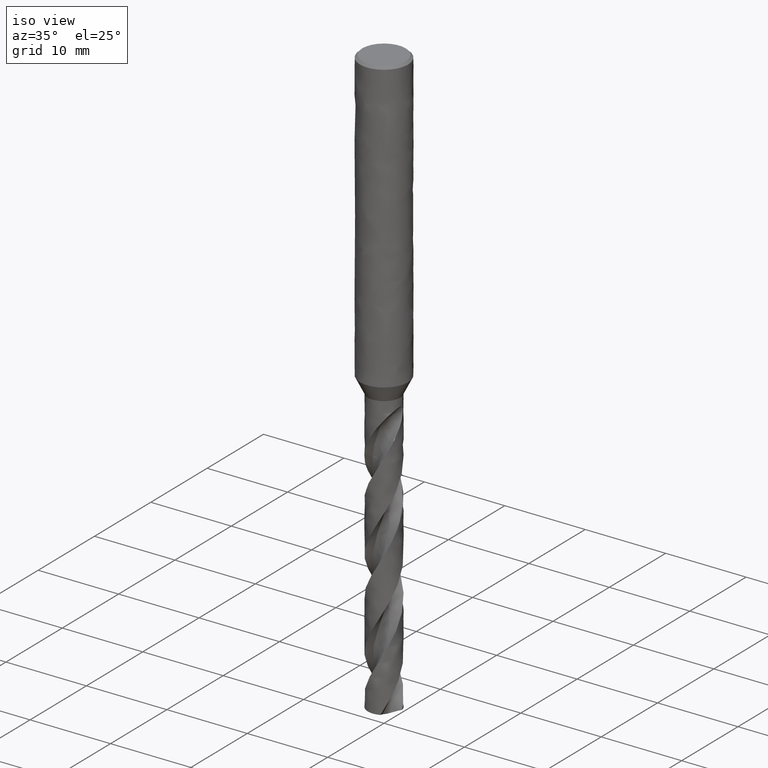
[diagram: clean part render]
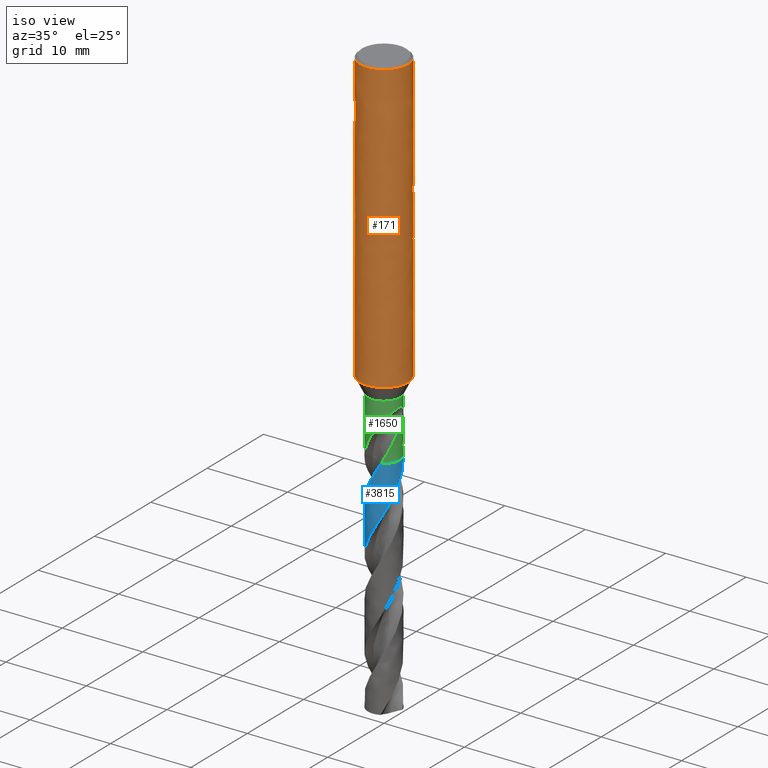
[diagram: same view with three faces highlighted in distinct colors, each labeled with its STEP entity id]
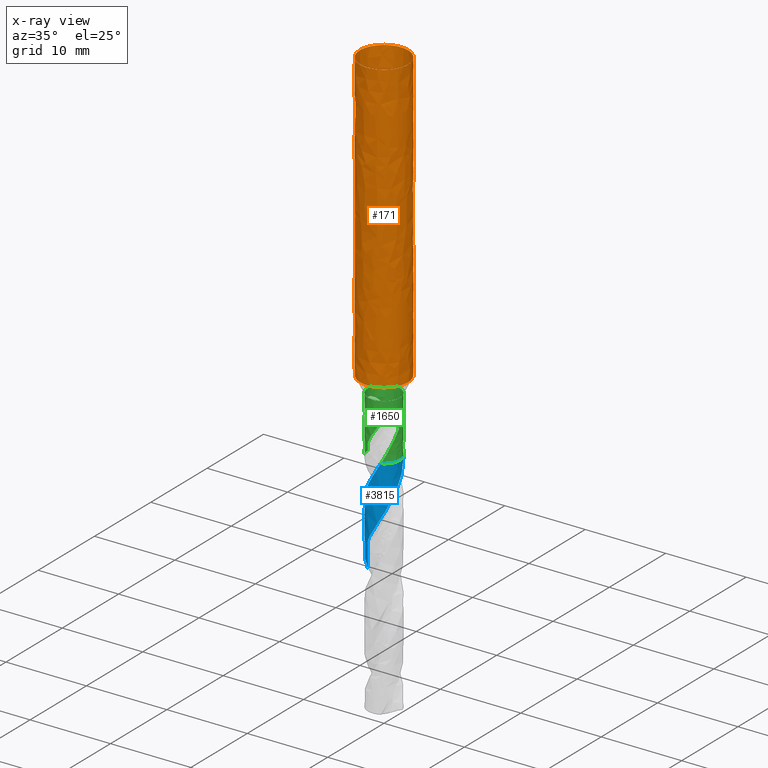
[diagram: x-ray of the same camera — body ghosted, the three highlighted faces saturated]
A machine part, iso view with three faces highlighted in distinct colors.
The next image is the same camera in x-ray (body ghosted, the three faces saturated) — at least one of them is partly hidden behind the body in this view.
Their STEP definitions:

[orange] entity #171 — the highlighted face is a freeform B-spline surface patch.
#73 = VERTEX_POINT('', #74);
#74 = CARTESIAN_POINT('', (-3., 2.38806125833734E-15, -36.));
#82 = EDGE_CURVE('', #73, #73, #83, .T.);
#83 = CIRCLE('', #84, 3.);
#84 = AXIS2_PLACEMENT_3D('', #85, #86, #87);
#85 = CARTESIAN_POINT('', (1.34978380439567E-31, 2.20436423846524E-15, -36.));
#86 = DIRECTION('', (3.74939945665464E-33, 6.12323399573677E-17, -1.));
#87 = DIRECTION('', (-1., 6.12323399573677E-17, 0.));
#120 = VERTEX_POINT('', #121);
#121 = CARTESIAN_POINT('', (-3., 2.02066721859313E-16, -0.299999999999997));
#137 = EDGE_CURVE('', #120, #120, #138, .T.);
#138 = CIRCLE('', #139, 3.);
#139 = AXIS2_PLACEMENT_3D('', #140, #141, #142);
#140 = CARTESIAN_POINT('', (1.12481983699637E-33, 1.836970198721E-17, -0.299999999999997));
#141 = DIRECTION('', (3.74939945665464E-33, 6.12323399573677E-17, -1.));
#142 = DIRECTION('', (-1., 6.12323399573677E-17, 0.));
#171 = ADVANCED_FACE('', (#172, #183), #354, .T.);
#172 = FACE_OUTER_BOUND('', #173, .T.);
#173 = EDGE_LOOP('', (#174, #180, #181, #182));
#174 = ORIENTED_EDGE('', *, *, #175, .T.);
#175 = EDGE_CURVE('', #73, #120, #176, .T.);
#176 = LINE('', #177, #178);
#177 = CARTESIAN_POINT('', (-3., 2.38806125833734E-15, -36.));
#178 = VECTOR('', #179, 35.7);
#179 = DIRECTION('', (0., -2.18599453647803E-15, 35.7));
#180 = ORIENTED_EDGE('', *, *, #137, .T.);
#181 = ORIENTED_EDGE('', *, *, #175, .F.);
#182 = ORIENTED_EDGE('', *, *, #82, .F.);
#183 = FACE_BOUND('', #184, .T.);
#184 = EDGE_LOOP('', (#185, #265, #273, #348));
#185 = ORIENTED_EDGE('', *, *, #186, .F.);
#186 = EDGE_CURVE('', #187, #189, #191, .T.);
#187 = VERTEX_POINT('', #188);
#188 = CARTESIAN_POINT('', (-2.14242852856285, 2.1, -15.9));
#189 = VERTEX_POINT('', #190);
#190 = CARTESIAN_POINT('', (2.14242852856286, 2.1, -15.9));
#191 = B_SPLINE_CURVE_WITH_KNOTS('', 3, (#192, #193, #194, #195, #196, #197, #198, #199, #200, #201, #202, #203, #204, #205, #206, #207, #208, #209, #210, #211, #212, #213, #214, #215, #216, #217, #218, #219, #220, #221, #222, #223, #224, #225, #226, #227, #228, #229, #230, #231, #232, #233, #234, #235, #236, #237, #238, #239, #240, #241, #242, #243, #244, #245, #246, #247, #248, #249, #250, #251, #252, #253, #254, #255, #256, #257, #258, #259, #260, #261, #262, #263, #264), .UNSPECIFIED., .F., .U., (4, 3, 3, 3, 3, 3, 3, 3, 3, 3, 3, 3, 3, 3, 3, 3, 3, 3, 3, 3, 3, 3, 3, 3, 4), (0., 0.226532141220098, 0.522486989651011, 0.818712617000359, 1.01613164123477, 1.21365653787484, 1.41130126070876, 1.60907935009335, 1.80700249001341, 2.00507870652317, 2.20331049885992, 2.40169339368014, 2.59896230886553, 2.79623122405091, 2.99461411887113, 3.19284591120788, 3.39092212771765, 3.5888452676377, 3.78662335702229, 3.98426807985621, 4.18179297649628, 4.37921200073069, 4.67543762808004, 4.97139247651095, 5.19792461773105), .UNSPECIFIED.);
#192 = CARTESIAN_POINT('', (-2.14242852856285, 2.1, -15.9));
#193 = CARTESIAN_POINT('', (-2.09966946167759, 2.14362297369034, -15.8556089394693));
#194 = CARTESIAN_POINT('', (-2.05511554936736, 2.1864112283916, -15.8120672951529));
#195 = CARTESIAN_POINT('', (-2.0087677833036, 2.22819478339795, -15.7695480406738));
#196 = CARTESIAN_POINT('', (-1.94821634893922, 2.28278326528933, -15.71399839793));
#197 = CARTESIAN_POINT('', (-1.88451279376245, 2.33573606973674, -15.6601132326456));
#198 = CARTESIAN_POINT('', (-1.81770907332824, 2.38661553768947, -15.6083379099064));
#199 = CARTESIAN_POINT('', (-1.75084423195188, 2.43754155695695, -15.5565152162052));
#200 = CARTESIAN_POINT('', (-1.6807436866328, 2.48648668451198, -15.5067082925553));
#201 = CARTESIAN_POINT('', (-1.60754910566601, 2.53294016369761, -15.4594368887067));
#202 = CARTESIAN_POINT('', (-1.55876871187291, 2.56389899941746, -15.4279329486004));
#203 = CARTESIAN_POINT('', (-1.5085561938224, 2.59378846644904, -15.3975172059771));
#204 = CARTESIAN_POINT('', (-1.45698599487322, 2.6224400490275, -15.3683611437249));
#205 = CARTESIAN_POINT('', (-1.40538813971894, 2.65110699695379, -15.3391894455812));
#206 = CARTESIAN_POINT('', (-1.35237136818211, 2.67856731294511, -15.311245625015));
#207 = CARTESIAN_POINT('', (-1.29804490816719, 2.7046403488045, -15.2847135109673));
#208 = CARTESIAN_POINT('', (-1.24368549163368, 2.7307292015695, -15.2581653015195));
#209 = CARTESIAN_POINT('', (-1.18794354651529, 2.75546251726231, -15.2329964966177));
#210 = CARTESIAN_POINT('', (-1.13097137564117, 2.77865142604832, -15.2093992916021));
#211 = CARTESIAN_POINT('', (-1.07396076113039, 2.80185598222798, -15.1857861636831));
#212 = CARTESIAN_POINT('', (-1.01563414958426, 2.82354738172838, -15.1637128351876));
#213 = CARTESIAN_POINT('', (-0.956194799697472, 2.84353503671602, -15.143373249704));
#214 = CARTESIAN_POINT('', (-0.896711856966022, 2.86353735065839, -15.1230187471597));
#215 = CARTESIAN_POINT('', (-0.836016614422423, 2.88186535336629, -15.1043680361057));
#216 = CARTESIAN_POINT('', (-0.774369168024391, 2.89833614192924, -15.087607239896));
#217 = CARTESIAN_POINT('', (-0.712674042608822, 2.91481966923584, -15.0708334806465));
#218 = CARTESIAN_POINT('', (-0.649913305064561, 2.92947198918526, -15.0559231715418));
#219 = CARTESIAN_POINT('', (-0.586405693294024, 2.94212990244693, -15.0430423854271));
#220 = CARTESIAN_POINT('', (-0.522848200475703, 2.95479775766609, -15.030151482303));
#221 = CARTESIAN_POINT('', (-0.458417641638557, 2.96549204170255, -15.0192688998049));
#222 = CARTESIAN_POINT('', (-0.393487032405311, 2.97408270821927, -15.010526974047));
#223 = CARTESIAN_POINT('', (-0.32850692971699, 2.98267992298454, -15.0017783847429));
#224 = CARTESIAN_POINT('', (-0.262890170542841, 2.98918754384691, -14.9951561816426));
#225 = CARTESIAN_POINT('', (-0.197052250671389, 2.99352140638837, -14.9907460110803));
#226 = CARTESIAN_POINT('', (-0.131584030526332, 2.99783093298788, -14.9863606049525));
#227 = CARTESIAN_POINT('', (-0.065756305061796, 3., -14.9841533463251));
#228 = CARTESIAN_POINT('', (9.18485099360515E-17, 3., -14.9841533463251));
#229 = CARTESIAN_POINT('', (0.0657563050617961, 3., -14.9841533463251));
#230 = CARTESIAN_POINT('', (0.131584030526332, 2.99783093298788, -14.9863606049525));
#231 = CARTESIAN_POINT('', (0.197052250671389, 2.99352140638837, -14.9907460110803));
#232 = CARTESIAN_POINT('', (0.262890170542842, 2.98918754384691, -14.9951561816426));
#233 = CARTESIAN_POINT('', (0.328506929716991, 2.98267992298454, -15.0017783847429));
#234 = CARTESIAN_POINT('', (0.393487032405312, 2.97408270821927, -15.010526974047));
#235 = CARTESIAN_POINT('', (0.458417641638557, 2.96549204170255, -15.0192688998049));
#236 = CARTESIAN_POINT('', (0.522848200475705, 2.95479775766609, -15.030151482303));
#237 = CARTESIAN_POINT('', (0.586405693294026, 2.94212990244693, -15.0430423854271));
#238 = CARTESIAN_POINT('', (0.649913305064563, 2.92947198918526, -15.0559231715418));
#239 = CARTESIAN_POINT('', (0.712674042608823, 2.91481966923584, -15.0708334806465));
#240 = CARTESIAN_POINT('', (0.774369168024392, 2.89833614192924, -15.087607239896));
#241 = CARTESIAN_POINT('', (0.836016614422424, 2.88186535336629, -15.1043680361057));
#242 = CARTESIAN_POINT('', (0.896711856966022, 2.86353735065839, -15.1230187471597));
#243 = CARTESIAN_POINT('', (0.956194799697471, 2.84353503671602, -15.143373249704));
#244 = CARTESIAN_POINT('', (1.01563414958426, 2.82354738172838, -15.1637128351876));
#245 = CARTESIAN_POINT('', (1.07396076113039, 2.80185598222798, -15.1857861636831));
#246 = CARTESIAN_POINT('', (1.13097137564117, 2.77865142604832, -15.2093992916021));
#247 = CARTESIAN_POINT('', (1.18794354651529, 2.75546251726231, -15.2329964966177));
#248 = CARTESIAN_POINT('', (1.24368549163368, 2.7307292015695, -15.2581653015195));
#249 = CARTESIAN_POINT('', (1.29804490816719, 2.7046403488045, -15.2847135109673));
#250 = CARTESIAN_POINT('', (1.35237136818211, 2.67856731294511, -15.311245625015));
#251 = CARTESIAN_POINT('', (1.40538813971894, 2.65110699695379, -15.3391894455812));
#252 = CARTESIAN_POINT('', (1.45698599487322, 2.6224400490275, -15.3683611437249));
#253 = CARTESIAN_POINT('', (1.5085561938224, 2.59378846644904, -15.3975172059771));
#254 = CARTESIAN_POINT('', (1.55876871187291, 2.56389899941746, -15.4279329486004));
#255 = CARTESIAN_POINT('', (1.60754910566601, 2.53294016369761, -15.4594368887067));
#256 = CARTESIAN_POINT('', (1.6807436866328, 2.48648668451198, -15.5067082925553));
#257 = CARTESIAN_POINT('', (1.75084423195188, 2.43754155695696, -15.5565152162052));
#258 = CARTESIAN_POINT('', (1.81770907332823, 2.38661553768947, -15.6083379099064));
#259 = CARTESIAN_POINT('', (1.88451279376245, 2.33573606973675, -15.6601132326456));
#260 = CARTESIAN_POINT('', (1.94821634893922, 2.28278326528933, -15.71399839793));
#261 = CARTESIAN_POINT('', (2.0087677833036, 2.22819478339795, -15.7695480406738));
#262 = CARTESIAN_POINT('', (2.05511554936735, 2.1864112283916, -15.8120672951529));
#263 = CARTESIAN_POINT('', (2.09966946167759, 2.14362297369034, -15.8556089394693));
#264 = CARTESIAN_POINT('', (2.14242852856286, 2.1, -15.9));
#265 = ORIENTED_EDGE('', *, *, #266, .T.);
#266 = EDGE_CURVE('', #187, #267, #269, .T.);
#267 = VERTEX_POINT('', #268);
#268 = CARTESIAN_POINT('', (-2.14242852856285, 2.1, -20.1));
#269 = LINE('', #270, #271);
#270 = CARTESIAN_POINT('', (-2.14242852856285, 2.1, -15.9));
#271 = VECTOR('', #272, 4.2);
#272 = DIRECTION('', (4.44089209850063E-16, 4.44089209850063E-16, -4.2));
#273 = ORIENTED_EDGE('', *, *, #274, .T.);
#274 = EDGE_CURVE('', #267, #275, #277, .T.);
#275 = VERTEX_POINT('', #276);
#276 = CARTESIAN_POINT('', (2.14242852856286, 2.1, -20.1));
#277 = B_SPLINE_CURVE_WITH_KNOTS('', 3, (#278, #279, #280, #281, #282, #283, #284, #285, #286, #287, #288, #289, #290, #291, #292, #293, #294, #295, #296, #297, #298, #299, #300, #301, #302, #303, #304, #305, #306, #307, #308, #309, #310, #311, #312, #313, #314, #315, #316, #317, #318, #319, #320, #321, #322, #323, #324, #325, #326, #327, #328, #329, #330, #331, #332, #333, #334, #335, #336, #337, #338, #339, #340, #341, #342, #343, #344, #345, #346, #347), .UNSPECIFIED., .F., .U., (4, 3, 3, 3, 3, 3, 3, 3, 3, 3, 3, 3, 3, 3, 3, 3, 3, 3, 3, 3, 3, 3, 3, 4), (0., 0.295660747419768, 0.591176839852676, 0.886518626925895, 1.18164841836716, 1.47652016794506, 1.67307726230278, 1.86952243409267, 2.06584587187347, 2.26204020012183, 2.39294997035299, 2.5987955185311, 2.79606443371649, 2.99444732853671, 3.19267912087346, 3.39075533738323, 3.58867847730327, 3.78645656668787, 3.98410128952179, 4.18162618616186, 4.37904521039627, 4.67527083774562, 4.97122568617653, 5.19775782739663), .UNSPECIFIED.);
#278 = CARTESIAN_POINT('', (-2.14242852856285, 2.1, -20.1));
#279 = CARTESIAN_POINT('', (-2.08662109388193, 2.15693497150777, -20.157937447925));
#280 = CARTESIAN_POINT('', (-2.02774367313634, 2.21245994000831, -20.2144400663657));
#281 = CARTESIAN_POINT('', (-1.96580397010841, 2.26618947820047, -20.269115641651));
#282 = CARTESIAN_POINT('', (-1.90389457170158, 2.31989272867704, -20.3237644663626));
#283 = CARTESIAN_POINT('', (-1.8388216153995, 2.37189080900499, -20.3766780973248));
#284 = CARTESIAN_POINT('', (-1.77065397516674, 2.42173171516323, -20.4273965719039));
#285 = CARTESIAN_POINT('', (-1.70252654250763, 2.47154322347377, -20.4780851310158));
#286 = CARTESIAN_POINT('', (-1.63117078258686, 2.51929762113425, -20.5266803591222));
#287 = CARTESIAN_POINT('', (-1.55675381487313, 2.56447217958794, -20.572650323779));
#288 = CARTESIAN_POINT('', (-1.48239026348173, 2.60961431185107, -20.6185872913044));
#289 = CARTESIAN_POINT('', (-1.40478985624159, 2.6522855246488, -20.6620098329141));
#290 = CARTESIAN_POINT('', (-1.32426732289553, 2.69189822569709, -20.7023200103564));
#291 = CARTESIAN_POINT('', (-1.24381519309784, 2.73147629203384, -20.7425949432603));
#292 = CARTESIAN_POINT('', (-1.16021288035591, 2.76811040114363, -20.7798740835253));
#293 = CARTESIAN_POINT('', (-1.07398043712975, 2.80117225829876, -20.8135180737918));
#294 = CARTESIAN_POINT('', (-1.01649918128153, 2.82321079737816, -20.8359446540893));
#295 = CARTESIAN_POINT('', (-0.957748596561568, 2.84370285567261, -20.856797524107));
#296 = CARTESIAN_POINT('', (-0.897945836518629, 2.86246279882885, -20.8758877809545));
#297 = CARTESIAN_POINT('', (-0.838177129067325, 2.88121205979111, -20.8949671675224));
#298 = CARTESIAN_POINT('', (-0.777257254947388, 2.89826163823775, -20.9123169445968));
#299 = CARTESIAN_POINT('', (-0.715458762567489, 2.91343761887321, -20.9277601346871));
#300 = CARTESIAN_POINT('', (-0.653698565749476, 2.92860419519017, -20.9431937548733));
#301 = CARTESIAN_POINT('', (-0.590947680355503, 2.94192632660259, -20.9567504542887));
#302 = CARTESIAN_POINT('', (-0.527533495262701, 2.9532538684265, -20.9682774445929));
#303 = CARTESIAN_POINT('', (-0.464161013676522, 2.96457396084119, -20.9797968543232));
#304 = CARTESIAN_POINT('', (-0.400001379736574, 2.97392352783085, -20.989311042813));
#305 = CARTESIAN_POINT('', (-0.335429955765134, 2.98118881400953, -20.9967042517405));
#306 = CARTESIAN_POINT('', (-0.292344967778634, 2.9860365430586, -21.0016373366599));
#307 = CARTESIAN_POINT('', (-0.249027925527356, 2.98996321515988, -21.0056331472199));
#308 = CARTESIAN_POINT('', (-0.205599414331941, 2.99294652154468, -21.0086689818526));
#309 = CARTESIAN_POINT('', (-0.137311419648321, 2.99763754145158, -21.0134425983904));
#310 = CARTESIAN_POINT('', (-0.0686151827260337, 3., -21.0158466536749));
#311 = CARTESIAN_POINT('', (3.42251758381152E-15, 3., -21.0158466536749));
#312 = CARTESIAN_POINT('', (0.0657563050618005, 3., -21.0158466536749));
#313 = CARTESIAN_POINT('', (0.131584030526337, 2.99783093298788, -21.0136393950475));
#314 = CARTESIAN_POINT('', (0.197052250671396, 2.99352140638837, -21.0092539889197));
#315 = CARTESIAN_POINT('', (0.262890170542848, 2.98918754384691, -21.0048438183574));
#316 = CARTESIAN_POINT('', (0.328506929716997, 2.98267992298454, -20.9982216152571));
#317 = CARTESIAN_POINT('', (0.393487032405318, 2.97408270821927, -20.989473025953));
#318 = CARTESIAN_POINT('', (0.458417641638563, 2.96549204170255, -20.9807311001951));
#319 = CARTESIAN_POINT('', (0.522848200475709, 2.95479775766609, -20.969848517697));
#320 = CARTESIAN_POINT('', (0.58640569329403, 2.94212990244693, -20.9569576145729));
#321 = CARTESIAN_POINT('', (0.649913305064567, 2.92947198918526, -20.9440768284582));
#322 = CARTESIAN_POINT('', (0.712674042608828, 2.91481966923584, -20.9291665193535));
#323 = CARTESIAN_POINT('', (0.774369168024398, 2.89833614192924, -20.912392760104));
#324 = CARTESIAN_POINT('', (0.836016614422428, 2.88186535336629, -20.8956319638943));
#325 = CARTESIAN_POINT('', (0.896711856966026, 2.86353735065839, -20.8769812528403));
#326 = CARTESIAN_POINT('', (0.956194799697474, 2.84353503671602, -20.856626750296));
#327 = CARTESIAN_POINT('', (1.01563414958426, 2.82354738172838, -20.8362871648124));
#328 = CARTESIAN_POINT('', (1.07396076113039, 2.80185598222798, -20.8142138363169));
#329 = CARTESIAN_POINT('', (1.13097137564118, 2.77865142604832, -20.7906007083979));
#330 = CARTESIAN_POINT('', (1.18794354651529, 2.75546251726231, -20.7670035033823));
#331 = CARTESIAN_POINT('', (1.24368549163369, 2.7307292015695, -20.7418346984805));
#332 = CARTESIAN_POINT('', (1.2980449081672, 2.70464034880449, -20.7152864890327));
#333 = CARTESIAN_POINT('', (1.35237136818211, 2.67856731294511, -20.688754374985));
#334 = CARTESIAN_POINT('', (1.40538813971895, 2.65110699695378, -20.6608105544188));
#335 = CARTESIAN_POINT('', (1.45698599487322, 2.6224400490275, -20.6316388562751));
#336 = CARTESIAN_POINT('', (1.50855619382241, 2.59378846644903, -20.6024827940229));
#337 = CARTESIAN_POINT('', (1.55876871187291, 2.56389899941746, -20.5720670513996));
#338 = CARTESIAN_POINT('', (1.60754910566601, 2.53294016369761, -20.5405631112933));
#339 = CARTESIAN_POINT('', (1.68074368663281, 2.48648668451198, -20.4932917074447));
#340 = CARTESIAN_POINT('', (1.75084423195189, 2.43754155695695, -20.4434847837948));
#341 = CARTESIAN_POINT('', (1.81770907332824, 2.38661553768947, -20.3916620900936));
#342 = CARTESIAN_POINT('', (1.88451279376245, 2.33573606973674, -20.3398867673544));
#343 = CARTESIAN_POINT('', (1.94821634893923, 2.28278326528932, -20.28600160207));
#344 = CARTESIAN_POINT('', (2.0087677833036, 2.22819478339794, -20.2304519593262));
#345 = CARTESIAN_POINT('', (2.05511554936736, 2.1864112283916, -20.1879327048471));
#346 = CARTESIAN_POINT('', (2.09966946167759, 2.14362297369034, -20.1443910605307));
#347 = CARTESIAN_POINT('', (2.14242852856286, 2.1, -20.1));
#348 = ORIENTED_EDGE('', *, *, #349, .F.);
#349 = EDGE_CURVE('', #189, #275, #350, .T.);
#350 = LINE('', #351, #352);
#351 = CARTESIAN_POINT('', (2.14242852856286, 2.1, -15.9));
#352 = VECTOR('', #353, 4.2);
#353 = DIRECTION('', (0., 4.44089209850063E-16, -4.2));
#354 = (
   BOUNDED_SURFACE ()
   B_SPLINE_SURFACE (1, 2, ((#355, #356, #357, #358, #359, #360, #361, #362, #363), (#364, #365, #366, #367, #368, #369, #370, #371, #372)), .UNSPECIFIED., .F., .T., .U.)
   B_SPLINE_SURFACE_WITH_KNOTS ((2, 2), (3, 2, 2, 2, 3), (0., 1.), (0., 4.71238898038469, 9.42477796076938, 14.1371669411541, 18.8495559215388), .UNSPECIFIED.)
   GEOMETRIC_REPRESENTATION_ITEM ()
   RATIONAL_B_SPLINE_SURFACE (((1., 0.707106781186548, 1., 0.707106781186548, 1., 0.707106781186548, 1., 0.707106781186548, 1.), (1., 0.707106781186548, 1., 0.707106781186548, 1., 0.707106781186548, 1., 0.707106781186548, 1.)))
   REPRESENTATION_ITEM ('')
   SURFACE ()
);
#355 = CARTESIAN_POINT('', (-3., 2.38806125833734E-15, -36.));
#356 = CARTESIAN_POINT('', (-3., 3., -36.));
#357 = CARTESIAN_POINT('', (1.23259516440783E-31, 3., -36.));
#358 = CARTESIAN_POINT('', (3., 3., -36.));
#359 = CARTESIAN_POINT('', (3., 2.38806125833734E-15, -36.));
#360 = CARTESIAN_POINT('', (3., -3., -36.));
#361 = CARTESIAN_POINT('', (3.67394039744206E-16, -3., -36.));
#362 = CARTESIAN_POINT('', (-3., -3., -36.));
#363 = CARTESIAN_POINT('', (-3., 2.38806125833734E-15, -36.));
#364 = CARTESIAN_POINT('', (-3., 2.02066721859313E-16, -0.299999999999997));
#365 = CARTESIAN_POINT('', (-3., 3., -0.299999999999997));
#366 = CARTESIAN_POINT('', (0., 3., -0.299999999999997));
#367 = CARTESIAN_POINT('', (3., 3., -0.299999999999997));
#368 = CARTESIAN_POINT('', (3., 2.02066721859313E-16, -0.299999999999997));
#369 = CARTESIAN_POINT('', (3., -3., -0.299999999999997));
#370 = CARTESIAN_POINT('', (3.67394039744206E-16, -3., -0.299999999999997));
#371 = CARTESIAN_POINT('', (-3., -3., -0.299999999999997));
#372 = CARTESIAN_POINT('', (-3., 2.02066721859313E-16, -0.299999999999997));

[blue] entity #3815 — the highlighted face is a freeform B-spline surface patch.
#1756 = VERTEX_POINT('', #1757);
#1757 = CARTESIAN_POINT('', (0.872405063946239, -1.79969703128081, -45.));
#1818 = EDGE_CURVE('', #1819, #1756, #1821, .T.);
#1819 = VERTEX_POINT('', #1820);
#1820 = CARTESIAN_POINT('', (1.59009105708685, 1.21309951371372, -45.));
#1821 = CIRCLE('', #1822, 2.);
#1822 = AXIS2_PLACEMENT_3D('', #1823, #1824, #1825);
#1823 = CARTESIAN_POINT('', (1.68722975549459E-31, 2.75545529808154E-15, -45.));
#1824 = DIRECTION('', (3.74939945665464E-33, 6.12323399573677E-17, -1.));
#1825 = DIRECTION('', (-1., 6.12323399573677E-17, 0.));
#3369 = EDGE_CURVE('', #1819, #3370, #3372, .T.);
#3370 = VERTEX_POINT('', #3371);
#3371 = CARTESIAN_POINT('', (-2., 3.68823331948205E-15, -58.2334211308916));
#3372 = B_SPLINE_CURVE_WITH_KNOTS('', 3, (#3373, #3374, #3375, #3376, #3377, #3378, #3379, #3380, #3381, #3382, #3383, #3384, #3385, #3386, #3387, #3388, #3389, #3390, #3391, #3392, #3393, #3394, #3395, #3396, #3397, #3398, #3399, #3400, #3401, #3402, #3403, #3404, #3405, #3406, #3407, #3408, #3409, #3410, #3411, #3412, #3413, #3414, #3415, #3416, #3417, #3418, #3419, #3420, #3421, #3422, #3423, #3424, #3425, #3426, #3427, #3428, #3429, #3430, #3431, #3432, #3433, #3434, #3435, #3436, #3437, #3438, #3439, #3440, #3441, #3442, #3443, #3444, #3445, #3446, #3447, #3448, #3449, #3450, #3451, #3452, #3453, #3454, #3455, #3456, #3457, #3458, #3459, #3460, #3461, #3462, #3463, #3464, #3465, #3466, #3467, #3468, #3469, #3470, #3471, #3472, #3473, #3474, #3475, #3476, #3477, #3478, #3479, #3480, #3481, #3482, #3483, #3484, #3485, #3486, #3487, #3488, #3489, #3490), .UNSPECIFIED., .F., .U., (4, 3, 3, 3, 3, 3, 3, 3, 3, 3, 3, 3, 3, 3, 3, 3, 3, 3, 3, 3, 3, 3, 3, 3, 3, 3, 3, 3, 3, 3, 3, 3, 3, 3, 3, 3, 3, 3, 3, 4), (5.69496142530992, 6.02612459803188, 6.46905756243353, 6.91182220500686, 7.35441879589176, 7.7968437739263, 8.23909324019634, 8.2974576542144, 8.33637988301941, 8.78090155480292, 9.22522428705492, 9.66935712947808, 10.1133074425593, 10.5570811133792, 11.0006827192009, 11.4441156493466, 11.8873821921767, 12.3304835922892, 12.7734200810117, 13.2161908818631, 13.6587941913068, 14.1012271338577, 14.5434856862276, 14.6018502688261, 14.6407680182009, 15.0852891738045, 15.5296124098759, 15.9737467364161, 16.4176994853668, 16.8614765253937, 17.305082424851, 17.7485205731082, 18.1917932674039, 18.6349017701382, 19.0778463397419, 19.5206262367957, 19.963239705757, 20.4056839313776, 20.8479549675355, 20.9469409976229), .UNSPECIFIED.);
#3373 = CARTESIAN_POINT('', (1.59009105708685, 1.21309951371372, -45.));
#3374 = CARTESIAN_POINT('', (1.62345533942602, 1.16936670665717, -45.0957064047699));
#3375 = CARTESIAN_POINT('', (1.65502314140061, 1.12424343916493, -45.191457853421));
#3376 = CARTESIAN_POINT('', (1.68466538143824, 1.07791583743053, -45.2871685664375));
#3377 = CARTESIAN_POINT('', (1.7243120762789, 1.01595235942308, -45.4151822869636));
#3378 = CARTESIAN_POINT('', (1.76054955986221, 0.951775061045182, -45.543244470809));
#3379 = CARTESIAN_POINT('', (1.79312861504889, 0.885827167055105, -45.6712613685332));
#3380 = CARTESIAN_POINT('', (1.82569528965751, 0.819904334351911, -45.7992296177259));
#3381 = CARTESIAN_POINT('', (1.8546310238757, 0.752162818941502, -45.9272490877734));
#3382 = CARTESIAN_POINT('', (1.87974033719226, 0.683063880418491, -46.05522228828));
#3383 = CARTESIAN_POINT('', (1.90484012024805, 0.613991168455081, -46.1831469164518));
#3384 = CARTESIAN_POINT('', (1.92613500705698, 0.543510646313612, -46.3111219227173));
#3385 = CARTESIAN_POINT('', (1.94348101140249, 0.472103334364449, -46.4390510479147));
#3386 = CARTESIAN_POINT('', (1.9608202899907, 0.400723709958734, -46.5669305697435));
#3387 = CARTESIAN_POINT('', (1.97422669739682, 0.328364844957523, -46.6948606304222));
#3388 = CARTESIAN_POINT('', (1.98361031500158, 0.255519310854522, -46.8227447551106));
#3389 = CARTESIAN_POINT('', (1.99299021008757, 0.182702674867271, -46.9505781476535));
#3390 = CARTESIAN_POINT('', (1.99835747246228, 0.109345725476385, -47.0784619601748));
#3391 = CARTESIAN_POINT('', (1.99967692249848, 0.0359472617548287, -47.2062999268837));
#3392 = CARTESIAN_POINT('', (1.99985105256321, 0.0262607416984795, -47.2231709207124));
#3393 = CARTESIAN_POINT('', (1.99995479780394, 0.016572961214393, -47.2400420641709));
#3394 = CARTESIAN_POINT('', (1.99998814890947, 0.00688507237828407, -47.2569131377128));
#3395 = CARTESIAN_POINT('', (2.00001039019096, 0.000424385121150742, -47.2681641679104));
#3396 = CARTESIAN_POINT('', (2.00000132551546, -0.00603639733031749, -47.2794152488822));
#3397 = CARTESIAN_POINT('', (1.99996095628263, -0.0124969334260423, -47.2906663154404));
#3398 = CARTESIAN_POINT('', (1.99949990871637, -0.0862812051407086, -47.419162115125));
#3399 = CARTESIAN_POINT('', (1.99494932407837, -0.160063532083802, -47.5477090705968));
#3400 = CARTESIAN_POINT('', (1.9863417852957, -0.233337335178691, -47.6762095060437));
#3401 = CARTESIAN_POINT('', (1.97773809869807, -0.306578345595553, -47.8046524328964));
#3402 = CARTESIAN_POINT('', (1.96507464347329, -0.37936621438087, -47.9331464047355));
#3403 = CARTESIAN_POINT('', (1.94843961022339, -0.451201823260413, -48.0615939638953));
#3404 = CARTESIAN_POINT('', (1.93181168627353, -0.523006731816778, -48.1899866285308));
#3405 = CARTESIAN_POINT('', (1.91120311155385, -0.593914060114716, -48.3184302285162));
#3406 = CARTESIAN_POINT('', (1.88675641733482, -0.663438182234189, -48.4468275207974));
#3407 = CARTESIAN_POINT('', (1.86231977019761, -0.732933731388447, -48.5751720444675));
#3408 = CARTESIAN_POINT('', (1.83402982511514, -0.801099366469543, -48.7035673941797));
#3409 = CARTESIAN_POINT('', (1.80208154171351, -0.867468798871496, -48.8319165408929));
#3410 = CARTESIAN_POINT('', (1.77014597013314, -0.933811823708723, -48.9602146190903));
#3411 = CARTESIAN_POINT('', (1.73453099762139, -0.998409891278017, -49.0885634155862));
#3412 = CARTESIAN_POINT('', (1.69548147438015, -1.06082164855065, -49.2168661117179));
#3413 = CARTESIAN_POINT('', (1.65644709186624, -1.12320920682365, -49.3451190608623));
#3414 = CARTESIAN_POINT('', (1.61395150275137, -1.1834590208731, -49.4734226233428));
#3415 = CARTESIAN_POINT('', (1.56828631443302, -1.24115995583248, -49.6016801848758));
#3416 = CARTESIAN_POINT('', (1.52263848990779, -1.29883895051012, -49.7298889775797));
#3417 = CARTESIAN_POINT('', (1.4737891757308, -1.35401435540976, -49.8581482828504));
#3418 = CARTESIAN_POINT('', (1.42207304391632, -1.40631015703029, -49.9863616818402));
#3419 = CARTESIAN_POINT('', (1.37037631731008, -1.45858633593572, -50.1145269719012));
#3420 = CARTESIAN_POINT('', (1.31577607245948, -1.50802436934367, -50.2427426795513));
#3421 = CARTESIAN_POINT('', (1.2586458378463, -1.55428782883743, -50.3709125691818));
#3422 = CARTESIAN_POINT('', (1.20153688758754, -1.60053405248619, -50.4990347080306));
#3423 = CARTESIAN_POINT('', (1.14185692359176, -1.64364282455405, -50.6272071770237));
#3424 = CARTESIAN_POINT('', (1.08001365732049, -1.6833212705842, -50.7553339080449));
#3425 = CARTESIAN_POINT('', (1.01819340758452, -1.72298494927736, -50.8834129534633));
#3426 = CARTESIAN_POINT('', (0.954165052803607, -1.75925064400554, -51.0115422509843));
#3427 = CARTESIAN_POINT('', (0.888365405001938, -1.79187245840649, -51.13962588044));
#3428 = CARTESIAN_POINT('', (0.82259037066932, -1.82448207006707, -51.267661598052));
#3429 = CARTESIAN_POINT('', (0.754996058097181, -1.85347498569457, -51.3957475011024));
#3430 = CARTESIAN_POINT('', (0.686042950560584, -1.87865512268381, -51.523787793826));
#3431 = CARTESIAN_POINT('', (0.617115926616279, -1.9038257345269, -51.6517796514478));
#3432 = CARTESIAN_POINT('', (0.546779580668346, -1.92520529186339, -51.7798216412769));
#3433 = CARTESIAN_POINT('', (0.475512358059346, -1.94264973614208, -51.9078180642474));
#3434 = CARTESIAN_POINT('', (0.404272567634019, -1.96008746570421, -52.035765218827));
#3435 = CARTESIAN_POINT('', (0.332049504646548, -1.97360612651731, -52.1637624662293));
#3436 = CARTESIAN_POINT('', (0.259333667627504, -1.98311523841533, -52.2917141772561));
#3437 = CARTESIAN_POINT('', (0.186646492416287, -1.99262060218433, -52.4196154546014));
#3438 = CARTESIAN_POINT('', (0.113412953449232, -1.99812665129305, -52.5475667918023));
#3439 = CARTESIAN_POINT('', (0.0401296018378738, -1.99959736323515, -52.6754726224361));
#3440 = CARTESIAN_POINT('', (0.0304584440834302, -1.99979145216382, -52.6923522743431));
#3441 = CARTESIAN_POINT('', (0.0207858793950374, -1.9999153766193, -52.7092320727953));
#3442 = CARTESIAN_POINT('', (0.0111130550049902, -1.99996912476379, -52.7261118000081));
#3443 = CARTESIAN_POINT('', (0.0046631749819035, -2.0000049642528, -52.7373672731724));
#3444 = CARTESIAN_POINT('', (-0.00178686713261012, -2.00000960211653, -52.7486227960482));
#3445 = CARTESIAN_POINT('', (-0.008236731231769, -1.99998303899273, -52.7598783040526));
#3446 = CARTESIAN_POINT('', (-0.0819075135586798, -1.99967963320287, -52.8884394748648));
#3447 = CARTESIAN_POINT('', (-0.155584796789869, -1.99529939123001, -53.0170515791777));
#3448 = CARTESIAN_POINT('', (-0.228764683036189, -1.98687360438336, -53.145617364787));
#3449 = CARTESIAN_POINT('', (-0.301911986516398, -1.97845156905173, -53.2741259074962));
#3450 = CARTESIAN_POINT('', (-0.374616595675783, -1.96598135274435, -53.4026852920345));
#3451 = CARTESIAN_POINT('', (-0.446381952643513, -1.94954947420042, -53.531198447554));
#3452 = CARTESIAN_POINT('', (-0.518116797680184, -1.93312458187334, -53.6596569641125));
#3453 = CARTESIAN_POINT('', (-0.588966367769856, -1.91272922759842, -53.7881662261729));
#3454 = CARTESIAN_POINT('', (-0.658447404256259, -1.8885039094025, -53.9166293535049));
#3455 = CARTESIAN_POINT('', (-0.727900034473733, -1.86428849536084, -54.0450399606337));
#3456 = CARTESIAN_POINT('', (-0.796036730061056, -1.83622830686006, -54.1735012125928));
#3457 = CARTESIAN_POINT('', (-0.862393313849584, -1.8045159384798, -54.3019164282963));
#3458 = CARTESIAN_POINT('', (-0.928723634834341, -1.7728161213139, -54.4302808194483));
#3459 = CARTESIAN_POINT('', (-0.99332443324469, -1.73744351783495, -54.5586957510155));
#3460 = CARTESIAN_POINT('', (-1.05575615156651, -1.69864032344387, -54.6870647482794));
#3461 = CARTESIAN_POINT('', (-1.11816379338399, -1.6598520933258, -54.8153842406313));
#3462 = CARTESIAN_POINT('', (-1.17845032934841, -1.61760714649954, -54.9437541660993));
#3463 = CARTESIAN_POINT('', (-1.23620605082142, -1.57219419917277, -55.0720782617423));
#3464 = CARTESIAN_POINT('', (-1.29393993175623, -1.52679842491881, -55.2003538311573));
#3465 = CARTESIAN_POINT('', (-1.34918778394802, -1.47820334217272, -55.3286797245947));
#3466 = CARTESIAN_POINT('', (-1.40157460614086, -1.42674055925423, -55.4569598940343));
#3467 = CARTESIAN_POINT('', (-1.45394188196112, -1.37529697793429, -55.5851922000633));
#3468 = CARTESIAN_POINT('', (-1.50348918936254, -1.32094960248826, -55.7134747205237));
#3469 = CARTESIAN_POINT('', (-1.54988066427268, -1.26406879817266, -55.8417116227844));
#3470 = CARTESIAN_POINT('', (-1.59625495542934, -1.20720906293755, -55.9699010251258));
#3471 = CARTESIAN_POINT('', (-1.63951026019043, -1.14777547187189, -56.0981405332911));
#3472 = CARTESIAN_POINT('', (-1.67935379924487, -1.08617255395347, -56.2263345274697));
#3473 = CARTESIAN_POINT('', (-1.71918259771986, -1.02459242674911, -56.3544810947933));
#3474 = CARTESIAN_POINT('', (-1.7556318210382, -0.960798719104786, -56.4826776619584));
#3475 = CARTESIAN_POINT('', (-1.78845519163485, -0.895225126721968, -56.6108288160537));
#3476 = CARTESIAN_POINT('', (-1.8212663595576, -0.829675912492549, -56.73893232767));
#3477 = CARTESIAN_POINT('', (-1.85047882802012, -0.762299288716611, -56.8670857375521));
#3478 = CARTESIAN_POINT('', (-1.87589566502051, -0.693552776619963, -56.9951938301397));
#3479 = CARTESIAN_POINT('', (-1.9013029485707, -0.624832104338874, -57.1232537706192));
#3480 = CARTESIAN_POINT('', (-1.92293640024014, -0.554691346496275, -57.2513635140911));
#3481 = CARTESIAN_POINT('', (-1.94065066807246, -0.483606228774999, -57.3794280289478));
#3482 = CARTESIAN_POINT('', (-1.95835816245102, -0.412548292067497, -57.5074435754205));
#3483 = CARTESIAN_POINT('', (-1.97216267461664, -0.340493760995335, -57.6355088379007));
#3484 = CARTESIAN_POINT('', (-1.98197202861271, -0.267930733207333, -57.7635289513103));
#3485 = CARTESIAN_POINT('', (-1.99177754285532, -0.195396109342511, -57.8914989527887));
#3486 = CARTESIAN_POINT('', (-1.997598336657, -0.122299380231048, -58.0195185936256));
#3487 = CARTESIAN_POINT('', (-1.99939634577779, -0.0491350434113482, -58.1474931537071));
#3488 = CARTESIAN_POINT('', (-1.99979876368531, -0.0327599099441499, -58.1761355304829));
#3489 = CARTESIAN_POINT('', (-2., -0.0163797126388767, -58.2047785455077));
#3490 = CARTESIAN_POINT('', (-2., 3.83004696364315E-15, -58.2334211308916));
#3815 = ADVANCED_FACE('', (#3816), #3901, .T.);
#3816 = FACE_OUTER_BOUND('', #3817, .T.);
#3817 = EDGE_LOOP('', (#3818, #3819, #3834, #3894, #3900));
#3818 = ORIENTED_EDGE('', *, *, #1818, .T.);
#3819 = ORIENTED_EDGE('', *, *, #3820, .T.);
#3820 = EDGE_CURVE('', #1756, #3821, #3823, .T.);
#3821 = VERTEX_POINT('', #3822);
#3822 = CARTESIAN_POINT('', (0.376983006108699, -1.96414964122015, -45.9074871226649));
#3823 = B_SPLINE_CURVE_WITH_KNOTS('', 3, (#3824, #3825, #3826, #3827, #3828, #3829, #3830, #3831, #3832, #3833), .UNSPECIFIED., .F., .U., (4, 3, 3, 4), (2.38338635199151, 2.79040198314412, 3.2329957090483, 3.43092497499851), .UNSPECIFIED.);
#3824 = CARTESIAN_POINT('', (0.872405063946239, -1.79969703128081, -45.));
#3825 = CARTESIAN_POINT('', (0.811393117415257, -1.82927263772439, -45.1175146123106));
#3826 = CARTESIAN_POINT('', (0.748861003156172, -1.85574871023546, -45.2350838399634));
#3827 = CARTESIAN_POINT('', (0.685169066520925, -1.87897401532923, -45.3526031176733));
#3828 = CARTESIAN_POINT('', (0.615909683372375, -1.9042294933255, -45.4803950033065));
#3829 = CARTESIAN_POINT('', (0.545225618909803, -1.92565910028075, -45.6082357096907));
#3830 = CARTESIAN_POINT('', (0.473606957484759, -1.94311514064968, -45.7360305505371));
#3831 = CARTESIAN_POINT('', (0.441578873364866, -1.95092153521517, -45.7931807936619));
#3832 = CARTESIAN_POINT('', (0.409356143805616, -1.95793620283947, -45.850335907482));
#3833 = CARTESIAN_POINT('', (0.376983006108683, -1.96414964122015, -45.9074871226649));
#3834 = ORIENTED_EDGE('', *, *, #3835, .T.);
#3835 = EDGE_CURVE('', #3821, #3836, #3838, .T.);
#3836 = VERTEX_POINT('', #3837);
#3837 = CARTESIAN_POINT('', (-2., 3.30803203760459E-15, -52.0242629941592));
#3838 = B_SPLINE_CURVE_WITH_KNOTS('', 3, (#3839, #3840, #3841, #3842, #3843, #3844, #3845, #3846, #3847, #3848, #3849, #3850, #3851, #3852, #3853, #3854, #3855, #3856, #3857, #3858, #3859, #3860, #3861, #3862, #3863, #3864, #3865, #3866, #3867, #3868, #3869, #3870, #3871, #3872, #3873, #3874, #3875, #3876, #3877, #3878, #3879, #3880, #3881, #3882, #3883, #3884, #3885, #3886, #3887, #3888, #3889, #3890, #3891, #3892, #3893), .UNSPECIFIED., .F., .U., (4, 3, 3, 3, 3, 3, 3, 3, 3, 3, 3, 3, 3, 3, 3, 3, 3, 3, 4), (0., 0.442337302335703, 0.737388803850315, 0.776306732179299, 1.22084149515355, 1.66517453286683, 2.109315185127, 2.55327105265843, 2.99704823086933, 3.4406514745741, 3.88408432648012, 4.32734920715673, 4.77044747528068, 5.21337946024318, 5.65614446927266, 6.09874076915474, 6.54116553244252, 6.98341477290643, 7.05685264362339), .UNSPECIFIED.);
#3839 = CARTESIAN_POINT('', (0.376983006108699, -1.96414964122015, -45.9074871226649));
#3840 = CARTESIAN_POINT('', (0.304634703657026, -1.97803558960856, -46.0352100959595));
#3841 = CARTESIAN_POINT('', (0.231497209242193, -1.98792205202167, -46.162985527421));
#3842 = CARTESIAN_POINT('', (0.158072731510725, -1.99374346683647, -46.2907165398531));
#3843 = CARTESIAN_POINT('', (0.109096526501105, -1.99762651529966, -46.3759167407158));
#3844 = CARTESIAN_POINT('', (0.0599719179195417, -1.99970410242085, -46.4611331234636));
#3845 = CARTESIAN_POINT('', (0.0108490396406036, -1.99997057436826, -46.5463369541982));
#3846 = CARTESIAN_POINT('', (0.00436962622850657, -2.00000572259186, -46.5575755229256));
#3847 = CARTESIAN_POINT('', (-0.00210991886816678, -2.00000938266883, -46.568814158318));
#3848 = CARTESIAN_POINT('', (-0.00858925113885808, -1.99998155610617, -46.5800527943389));
#3849 = CARTESIAN_POINT('', (-0.0825985460539223, -1.9996637109647, -46.7084245914572));
#3850 = CARTESIAN_POINT('', (-0.156611111910626, -1.99523138993007, -46.8368498584067));
#3851 = CARTESIAN_POINT('', (-0.230115232829134, -1.98671763963075, -46.9652299788248));
#3852 = CARTESIAN_POINT('', (-0.303585998340575, -1.97820775278294, -47.0935518416769));
#3853 = CARTESIAN_POINT('', (-0.376604832548259, -1.96561365371073, -47.2219270050678));
#3854 = CARTESIAN_POINT('', (-0.448667603925107, -1.94902472564821, -47.3502571904961));
#3855 = CARTESIAN_POINT('', (-0.520699173865764, -1.93244298019012, -47.4785318120595));
#3856 = CARTESIAN_POINT('', (-0.591830584068317, -1.91185719432448, -47.6068595772481));
#3857 = CARTESIAN_POINT('', (-0.661571481457026, -1.88741176612933, -47.7351424995704));
#3858 = CARTESIAN_POINT('', (-0.731283363143747, -1.86297650845515, -47.86337204978));
#3859 = CARTESIAN_POINT('', (-0.799659251184495, -1.83466612367892, -47.9916545950494));
#3860 = CARTESIAN_POINT('', (-0.866228513635727, -1.80267805283268, -48.1198924304689));
#3861 = CARTESIAN_POINT('', (-0.932770982396087, -1.77070285697485, -48.248078651002));
#3862 = CARTESIAN_POINT('', (-0.9975592654258, -1.73502844521444, -48.3763177276805));
#3863 = CARTESIAN_POINT('', (-1.0601481486483, -1.695902680851, -48.5045122154457));
#3864 = CARTESIAN_POINT('', (-1.12271250071636, -1.65679225148187, -48.6326564585249));
#3865 = CARTESIAN_POINT('', (-1.18312713199983, -1.61420320873547, -48.7608534317708));
#3866 = CARTESIAN_POINT('', (-1.24097761406434, -1.56843060458255, -48.8890059241517));
#3867 = CARTESIAN_POINT('', (-1.29880587526406, -1.52267558207824, -49.0171091920647));
#3868 = CARTESIAN_POINT('', (-1.35411626597494, -1.47370440024247, -49.1452650792024));
#3869 = CARTESIAN_POINT('', (-1.40653011524643, -1.42185549016237, -49.2733765777331));
#3870 = CARTESIAN_POINT('', (-1.45892411028595, -1.3700262203167, -49.401439547956));
#3871 = CARTESIAN_POINT('', (-1.50846385208943, -1.31528175980314, -49.529555044239));
#3872 = CARTESIAN_POINT('', (-1.55481093974472, -1.25799957935213, -49.6576262257745));
#3873 = CARTESIAN_POINT('', (-1.6011406066502, -1.20073892988795, -49.785649268449));
#3874 = CARTESIAN_POINT('', (-1.64431538834436, -1.14089878002218, -49.9137247644284));
#3875 = CARTESIAN_POINT('', (-1.68404114840807, -1.07889082416546, -50.0417559983758));
#3876 = CARTESIAN_POINT('', (-1.72375200043568, -1.01690613826865, -50.1697391855583));
#3877 = CARTESIAN_POINT('', (-1.76004662444283, -0.952708161722534, -50.2977747764494));
#3878 = CARTESIAN_POINT('', (-1.79267857229575, -0.886737580365066, -50.4257661340895));
#3879 = CARTESIAN_POINT('', (-1.82529821859871, -0.820791868512957, -50.5537092417113));
#3880 = CARTESIAN_POINT('', (-1.85428263481377, -0.753025034857553, -50.6817047289594));
#3881 = CARTESIAN_POINT('', (-1.8794358676388, -0.683901176657002, -50.8096559858132));
#3882 = CARTESIAN_POINT('', (-1.9045795161914, -0.614803657094202, -50.9375584887071));
#3883 = CARTESIAN_POINT('', (-1.92591380647178, -0.544298262319529, -51.0655133637702));
#3884 = CARTESIAN_POINT('', (-1.94329541827676, -0.472866701412373, -51.1934240052205));
#3885 = CARTESIAN_POINT('', (-1.96067029350828, -0.401462825162063, -51.3212850724747));
#3886 = CARTESIAN_POINT('', (-1.97410853595803, -0.32908024597583, -51.4491984964367));
#3887 = CARTESIAN_POINT('', (-1.98352091513184, -0.256212371353924, -51.5770676964758));
#3888 = CARTESIAN_POINT('', (-1.99292956013995, -0.183373405545862, -51.7048861670689));
#3889 = CARTESIAN_POINT('', (-1.99832253257587, -0.109995525967929, -51.8327569613885));
#3890 = CARTESIAN_POINT('', (-1.99966548740483, -0.0365778414150844, -51.9605835589059));
#3891 = CARTESIAN_POINT('', (-1.99988849229457, -0.0243864390717486, -51.9818098545867));
#3892 = CARTESIAN_POINT('', (-2., -0.0121930568630875, -52.0030364773715));
#3893 = CARTESIAN_POINT('', (-2., 2.85353448689867E-15, -52.0242629941592));
#3894 = ORIENTED_EDGE('', *, *, #3895, .T.);
#3895 = EDGE_CURVE('', #3836, #3370, #3896, .T.);
#3896 = LINE('', #3897, #3898);
#3897 = CARTESIAN_POINT('', (-2., 3.30803203760459E-15, -52.0242629941592));
#3898 = VECTOR('', #3899, 6.20915813673237);
#3899 = DIRECTION('', (0., 3.80201281877452E-16, -6.20915813673237));
#3900 = ORIENTED_EDGE('', *, *, #3369, .F.);
#3901 = (
   BOUNDED_SURFACE ()
   B_SPLINE_SURFACE (2, 1, ((#3902, #3903), (#3904, #3905), (#3906, #3907), (#3908, #3909), (#3910, #3911), (#3912, #3913), (#3914, #3915)), .UNSPECIFIED., .F., .F., .U.)
   B_SPLINE_SURFACE_WITH_KNOTS ((3, 2, 2, 3), (2, 2), (4.96624882258155, 6.28318530717959, 9.42477796076938, 12.5663706143592), (0.19845736520588, 0.573638778105389), .UNSPECIFIED.)
   GEOMETRIC_REPRESENTATION_ITEM ()
   RATIONAL_B_SPLINE_SURFACE (((0.85737835658914, 0.85737835658914), (0.877220948582866, 0.877220948582866), (1., 1.), (0.707106781186547, 0.707106781186547), (1., 1.), (0.707106781186547, 0.707106781186547), (1., 1.)))
   REPRESENTATION_ITEM ('')
   SURFACE ()
);
#3902 = CARTESIAN_POINT('', (1.59009105708685, 1.21309951371371, -45.));
#3903 = CARTESIAN_POINT('', (1.59009105708685, 1.21309951371371, -58.2334211308916));
#3904 = CARTESIAN_POINT('', (2., 0.675804314945746, -45.));
#3905 = CARTESIAN_POINT('', (2., 0.675804314945747, -58.2334211308916));
#3906 = CARTESIAN_POINT('', (2., 2.87791997799628E-15, -45.));
#3907 = CARTESIAN_POINT('', (2., 3.68823331948205E-15, -58.2334211308916));
#3908 = CARTESIAN_POINT('', (2., -2., -45.));
#3909 = CARTESIAN_POINT('', (2., -2., -58.2334211308916));
#3910 = CARTESIAN_POINT('', (2.44929359829471E-16, -2., -45.));
#3911 = CARTESIAN_POINT('', (2.44929359829471E-16, -2., -58.2334211308916));
#3912 = CARTESIAN_POINT('', (-2., -2., -45.));
#3913 = CARTESIAN_POINT('', (-2., -2., -58.2334211308916));
#3914 = CARTESIAN_POINT('', (-2., 2.87791997799628E-15, -45.));
#3915 = CARTESIAN_POINT('', (-2., 3.68823331948205E-15, -58.2334211308916));

[green] entity #1650 — the highlighted face is a freeform B-spline surface patch.
#75 = VERTEX_POINT('', #76);
#76 = CARTESIAN_POINT('', (-2., 2.44929359829471E-15, -38.));
#90 = EDGE_CURVE('', #75, #75, #91, .T.);
#91 = CIRCLE('', #92, 2.);
#92 = AXIS2_PLACEMENT_3D('', #93, #94, #95);
#93 = CARTESIAN_POINT('', (1.42477179352876E-31, 2.32682891837997E-15, -38.));
#94 = DIRECTION('', (3.74939945665464E-33, 6.12323399573677E-17, -1.));
#95 = DIRECTION('', (-1., 6.12323399573677E-17, 0.));
#420 = VERTEX_POINT('', #421);
#421 = CARTESIAN_POINT('', (1.59009105708684, 1.21309951371372, -45.));
#430 = VERTEX_POINT('', #431);
#431 = CARTESIAN_POINT('', (-1.12248495987465, 1.65530284686978, -40.1901029098065));
#451 = EDGE_CURVE('', #430, #420, #452, .T.);
#452 = B_SPLINE_CURVE_WITH_KNOTS('', 3, (#453, #454, #455, #456, #457, #458, #459, #460, #461, #462, #463, #464, #465, #466, #467, #468, #469, #470, #471, #472, #473, #474, #475, #476, #477, #478, #479, #480, #481, #482, #483, #484, #485, #486, #487, #488, #489, #490, #491, #492, #493, #494, #495, #496, #497, #498, #499, #500, #501, #502, #503, #504, #505, #506, #507, #508, #509, #510, #511, #512, #513, #514, #515, #516, #517, #518, #519, #520, #521, #522, #523, #524, #525, #526, #527, #528, #529, #530, #531, #532, #533, #534, #535, #536, #537, #538, #539, #540, #541, #542, #543, #544, #545, #546, #547, #548, #549), .UNSPECIFIED., .F., .U., (4, 3, 3, 3, 3, 3, 3, 3, 3, 3, 3, 3, 3, 3, 3, 3, 3, 3, 3, 3, 3, 3, 3, 3, 3, 3, 3, 3, 3, 3, 3, 3, 4), (0., 0.196146608761483, 0.39232703440164, 0.588549066291466, 0.784823785997037, 0.981153599057483, 1.17754669729819, 1.37400424399917, 1.57053689443825, 1.76714672108156, 1.96381383063311, 2.00272174016173, 2.04165294010453, 2.17313945120012, 2.37050892462721, 2.56793975053339, 2.62635112626549, 2.75783221591539, 2.88925840094629, 3.02068161666997, 3.15213314596149, 3.34931854757169, 3.48073016611121, 3.77646201041712, 4.07218112379115, 4.26928442641936, 4.46637505239929, 4.66347491023953, 4.79485636886247, 5.09045428218783, 5.28750341947587, 5.58303054699614, 5.69496142530992), .UNSPECIFIED.);
#453 = CARTESIAN_POINT('', (-1.12248495987465, 1.65530284686978, -40.1901029098065));
#454 = CARTESIAN_POINT('', (-1.0875908498473, 1.67896505089969, -40.2400762391391));
#455 = CARTESIAN_POINT('', (-1.05218862708633, 1.70136011084781, -40.2903130667077));
#456 = CARTESIAN_POINT('', (-1.01639652267359, 1.7224802201178, -40.340787800039));
#457 = CARTESIAN_POINT('', (-0.980598247482474, 1.74360397062419, -40.391271235524));
#458 = CARTESIAN_POINT('', (-0.944394550224073, 1.76346132352621, -40.4420143273013));
#459 = CARTESIAN_POINT('', (-0.907907022538202, 1.78205073957669, -40.4929986438581));
#460 = CARTESIAN_POINT('', (-0.871411756520733, 1.80064409809943, -40.5439937732479));
#461 = CARTESIAN_POINT('', (-0.834616796836442, 1.81797730388985, -40.595250024542));
#462 = CARTESIAN_POINT('', (-0.797631040857135, 1.83406235517258, -40.646742214476));
#463 = CARTESIAN_POINT('', (-0.760635353787637, 1.85015172547192, -40.6982482306404));
#464 = CARTESIAN_POINT('', (-0.723434257720886, 1.86499849426774, -40.7500100293016));
#465 = CARTESIAN_POINT('', (-0.686138692716479, 1.8786201570188, -40.8020091594328));
#466 = CARTESIAN_POINT('', (-0.648832659029192, 1.89224564330404, -40.8540228854658));
#467 = CARTESIAN_POINT('', (-0.61142100984763, 1.9046495495856, -40.9062950749969));
#468 = CARTESIAN_POINT('', (-0.574005815273277, 1.91585942178242, -40.9588047284152));
#469 = CARTESIAN_POINT('', (-0.536578560241594, 1.92707290738248, -41.0113313078563));
#470 = CARTESIAN_POINT('', (-0.499133774978045, 1.93709577597634, -41.0641128752989));
#471 = CARTESIAN_POINT('', (-0.461771173479081, 1.94596181446188, -41.1171318586642));
#472 = CARTESIAN_POINT('', (-0.424396311049565, 1.95483076243117, -41.1701682407664));
#473 = CARTESIAN_POINT('', (-0.387093327268446, 1.96254459689611, -41.2234609219937));
#474 = CARTESIAN_POINT('', (-0.349958655298034, 1.96914421502896, -41.2769946271181));
#475 = CARTESIAN_POINT('', (-0.312809787117171, 1.97574635612924, -41.3305487976379));
#476 = CARTESIAN_POINT('', (-0.275814861591563, 1.98123620223103, -41.3843584717617));
#477 = CARTESIAN_POINT('', (-0.239056961063757, 1.98566154451533, -41.438404275935));
#478 = CARTESIAN_POINT('', (-0.202284626113822, 1.99008862458274, -41.4924713032996));
#479 = CARTESIAN_POINT('', (-0.165738493820414, 1.99345154409004, -41.5467901932916));
#480 = CARTESIAN_POINT('', (-0.129506196689741, 1.99580263177978, -41.6013497033237));
#481 = CARTESIAN_POINT('', (-0.0932633431622318, 1.99815440446651, -41.6559251094454));
#482 = CARTESIAN_POINT('', (-0.0573252679664798, 1.99949445413412, -41.7107566966809));
#483 = CARTESIAN_POINT('', (-0.0217709622689206, 1.99988150279013, -41.7658320247292));
#484 = CARTESIAN_POINT('', (-0.0147370270441247, 1.99995807509613, -41.7767279284004));
#485 = CARTESIAN_POINT('', (-0.00771786388638791, 1.99999737201554, -41.787633707564));
#486 = CARTESIAN_POINT('', (-0.000714044514688715, 1.99999987253511, -41.7985492621918));
#487 = CARTESIAN_POINT('', (0.00629396736840402, 2.00000237455149, -41.8094713509097));
#488 = CARTESIAN_POINT('', (0.0132866873737888, 1.99996803615058, -41.8204033362826));
#489 = CARTESIAN_POINT('', (0.0202635554416218, 1.99989734444568, -41.8313451173727));
#490 = CARTESIAN_POINT('', (0.0438272791891959, 1.99965858977965, -41.8682999665122));
#491 = CARTESIAN_POINT('', (0.0672117683098561, 1.99900505453101, -41.9053692397587));
#492 = CARTESIAN_POINT('', (0.0903964504047252, 1.99795607603229, -41.9425490342153));
#493 = CARTESIAN_POINT('', (0.125198107688884, 1.99638149372569, -41.9983582301007));
#494 = CARTESIAN_POINT('', (0.159557910347113, 1.99391561542783, -42.0544265178253));
#495 = CARTESIAN_POINT('', (0.193430826828523, 1.99062415217751, -42.1107300950053));
#496 = CARTESIAN_POINT('', (0.227314272736618, 1.98733166577287, -42.167051174203));
#497 = CARTESIAN_POINT('', (0.26071962861616, 1.9832113239978, -42.2236199299705));
#498 = CARTESIAN_POINT('', (0.293554700097927, 1.97833911098437, -42.2804452056537));
#499 = CARTESIAN_POINT('', (0.303269199790205, 1.97689763058906, -42.2972573853818));
#500 = CARTESIAN_POINT('', (0.312933738255268, 1.97539042251759, -42.3140930192011));
#501 = CARTESIAN_POINT('', (0.322545141912119, 1.97381980723391, -42.3309528188615));
#502 = CARTESIAN_POINT('', (0.344179931540493, 1.97028443066845, -42.3689033859016));
#503 = CARTESIAN_POINT('', (0.365543871940791, 1.96642835974032, -42.4069807050844));
#504 = CARTESIAN_POINT('', (0.38665118452652, 1.96226931421362, -42.4451643697083));
#505 = CARTESIAN_POINT('', (0.407749683000967, 1.95811200544475, -42.4833320893809));
#506 = CARTESIAN_POINT('', (0.428593546943114, 1.95365222788986, -42.5216092844404));
#507 = CARTESIAN_POINT('', (0.449252149864964, 1.94889007023017, -42.5599465855821));
#508 = CARTESIAN_POINT('', (0.469910286047717, 1.94412802016174, -42.5982830205705));
#509 = CARTESIAN_POINT('', (0.490385112383603, 1.93906373791589, -42.6366820554414));
#510 = CARTESIAN_POINT('', (0.510797444776807, 1.9336716294163, -42.6750666853239));
#511 = CARTESIAN_POINT('', (0.531214174764112, 1.92827835925111, -42.7134595847181));
#512 = CARTESIAN_POINT('', (0.551589368562045, 1.92255004892314, -42.7518290146084));
#513 = CARTESIAN_POINT('', (0.571905989801171, 1.91648729159093, -42.7901751073076));
#514 = CARTESIAN_POINT('', (0.602382174749272, 1.90739278165362, -42.8476966114684));
#515 = CARTESIAN_POINT('', (0.632723376940405, 1.89754636841236, -42.9051758975003));
#516 = CARTESIAN_POINT('', (0.662871765065843, 1.88695549048686, -42.962614032908));
#517 = CARTESIAN_POINT('', (0.68296376197621, 1.87989733912992, -43.0008929231209));
#518 = CARTESIAN_POINT('', (0.702972330511079, 1.87250796905279, -43.0391560779048));
#519 = CARTESIAN_POINT('', (0.722887001364681, 1.86478802636063, -43.0773998701589));
#520 = CARTESIAN_POINT('', (0.767703452190982, 1.84741488298366, -43.1634646134613));
#521 = CARTESIAN_POINT('', (0.812057113375366, 1.82836178159506, -43.2494493951199));
#522 = CARTESIAN_POINT('', (0.855811498079982, 1.80764672426725, -43.3353209307659));
#523 = CARTESIAN_POINT('', (0.899563999206274, 1.78693255869996, -43.4211887697364));
#524 = CARTESIAN_POINT('', (0.942733114998024, 1.76454816818877, -43.5069696082537));
#525 = CARTESIAN_POINT('', (0.985153387960464, 1.74053807835107, -43.5926473755402));
#526 = CARTESIAN_POINT('', (1.01342743424678, 1.72453482462352, -43.6497534945911));
#527 = CARTESIAN_POINT('', (1.04137307828759, 1.70780734492783, -43.7068248663633));
#528 = CARTESIAN_POINT('', (1.06893987034473, 1.69037497425494, -43.7638583572676));
#529 = CARTESIAN_POINT('', (1.09650488945073, 1.67294372474049, -43.8208881800775));
#530 = CARTESIAN_POINT('', (1.12369608327333, 1.65480450247981, -43.8778879768116));
#531 = CARTESIAN_POINT('', (1.15046361285073, 1.63598089093561, -43.9348550764081));
#532 = CARTESIAN_POINT('', (1.1772323962376, 1.61715639768051, -43.9918248443827));
#533 = CARTESIAN_POINT('', (1.20358137054708, 1.59764403140332, -44.0487702683892));
#534 = CARTESIAN_POINT('', (1.22943694377867, 1.5774932016564, -44.1057081043753));
#535 = CARTESIAN_POINT('', (1.24667157277294, 1.5640612010775, -44.1436613328792));
#536 = CARTESIAN_POINT('', (1.26368569764345, 1.55034685584646, -44.1816164550754));
#537 = CARTESIAN_POINT('', (1.28046157953253, 1.5363652376115, -44.219576733899));
#538 = CARTESIAN_POINT('', (1.31820598983656, 1.504907700007, -44.3049843654408));
#539 = CARTESIAN_POINT('', (1.35476275617813, 1.47208265276034, -44.3904322665792));
#540 = CARTESIAN_POINT('', (1.3900549596459, 1.43796634493435, -44.475867731239));
#541 = CARTESIAN_POINT('', (1.41358116850199, 1.41522400230771, -44.5328200433025));
#542 = CARTESIAN_POINT('', (1.43655305311535, 1.39190036248847, -44.5897748795673));
#543 = CARTESIAN_POINT('', (1.45894119574318, 1.36802433727016, -44.6467219513982));
#544 = CARTESIAN_POINT('', (1.49251811758297, 1.33221594324988, -44.732129098014));
#545 = CARTESIAN_POINT('', (1.52478822880776, 1.29515671151763, -44.8175446774969));
#546 = CARTESIAN_POINT('', (1.55564202072914, 1.25697171938821, -44.9029494862359));
#547 = CARTESIAN_POINT('', (1.56732789220242, 1.24250915636291, -44.9352965514092));
#548 = CARTESIAN_POINT('', (1.57881415876558, 1.22788090218977, -44.9676518923946));
#549 = CARTESIAN_POINT('', (1.59009105708684, 1.21309951371372, -45.));
#700 = VERTEX_POINT('', #701);
#701 = CARTESIAN_POINT('', (-2., 2.6460957999925E-15, -41.2140238611625));
#723 = EDGE_CURVE('', #700, #724, #726, .T.);
#724 = VERTEX_POINT('', #725);
#725 = CARTESIAN_POINT('', (-2., 2.51058115901124E-15, -39.0009018234353));
#726 = B_SPLINE_CURVE_WITH_KNOTS('', 3, (#727, #728, #729, #730, #731, #732, #733, #734, #735, #736, #737, #738, #739, #740, #741, #742, #743, #744, #745, #746, #747, #748, #749, #750, #751, #752, #753, #754, #755, #756, #757, #758, #759, #760, #761, #762, #763, #764, #765, #766, #767, #768, #769, #770, #771, #772, #773, #774, #775, #776, #777, #778, #779, #780, #781, #782, #783, #784, #785, #786, #787, #788, #789, #790, #791, #792, #793, #794, #795, #796, #797, #798, #799, #800, #801, #802, #803, #804, #805), .UNSPECIFIED., .F., .U., (4, 3, 3, 3, 3, 3, 3, 3, 3, 3, 3, 3, 3, 3, 3, 3, 3, 3, 3, 3, 3, 3, 3, 3, 3, 3, 4), (0., 0.196623121558917, 0.39300386698333, 0.589162007470431, 0.785130193892506, 0.980976605604738, 1.11178697308167, 1.24262039614769, 1.37351735167285, 1.50453593939683, 1.63576137053214, 1.76731616711102, 1.82579949585417, 1.9137993934318, 2.0020460120132, 2.09057475318648, 2.14946075447435, 2.20840273898017, 2.26737136373072, 2.32632757620484, 2.38523001237918, 2.44404419825434, 2.50274897937031, 2.56133766316956, 2.63414650463649, 2.66008594888755, 2.67197623733361), .UNSPECIFIED.);
#727 = CARTESIAN_POINT('', (-2., 2.51707574146673E-15, -41.2140238611625));
#728 = CARTESIAN_POINT('', (-2., -0.0355493891653427, -41.1589614518221));
#729 = CARTESIAN_POINT('', (-1.99904781529043, -0.0705243409148974, -41.1035129949965));
#730 = CARTESIAN_POINT('', (-1.99726167713229, -0.104622144208102, -41.0475685804991));
#731 = CARTESIAN_POINT('', (-1.99547774073587, -0.138677915345109, -40.9916931283436));
#732 = CARTESIAN_POINT('', (-1.99286136838497, -0.171873282384216, -40.9353009134241));
#733 = CARTESIAN_POINT('', (-1.98957845547144, -0.203905785900946, -40.8783080600858));
#734 = CARTESIAN_POINT('', (-1.98629926386277, -0.235901979374031, -40.8213798102835));
#735 = CARTESIAN_POINT('', (-1.98235327138787, -0.266755266472901, -40.7638231683898));
#736 = CARTESIAN_POINT('', (-1.97795364997522, -0.296140774885341, -40.7055782514725));
#737 = CARTESIAN_POINT('', (-1.97355828903308, -0.325497827192101, -40.6473897373062));
#738 = CARTESIAN_POINT('', (-1.9687072679677, -0.353411153548062, -40.5884750640787));
#739 = CARTESIAN_POINT('', (-1.96365882216498, -0.379531329581152, -40.5288151236009));
#740 = CARTESIAN_POINT('', (-1.95861351346851, -0.405635274526351, -40.4691922558341));
#741 = CARTESIAN_POINT('', (-1.95336597154026, -0.429975300510311, -40.4087699699841));
#742 = CARTESIAN_POINT('', (-1.94822388323022, -0.45213239301268, -40.3475786338169));
#743 = CARTESIAN_POINT('', (-1.9447893630082, -0.466931629757001, -40.3067075190465));
#744 = CARTESIAN_POINT('', (-1.94140055828052, -0.480766246371552, -40.2654665557792));
#745 = CARTESIAN_POINT('', (-1.93816161935692, -0.493487119641202, -40.223885911029));
#746 = CARTESIAN_POINT('', (-1.93492210956385, -0.506210234990227, -40.1822979376069));
#747 = CARTESIAN_POINT('', (-1.93183007622317, -0.517829445500076, -40.1403390390942));
#748 = CARTESIAN_POINT('', (-1.92900085436001, -0.528162573341141, -40.0980642996638));
#749 = CARTESIAN_POINT('', (-1.92617025863215, -0.538500718929253, -40.055769031701));
#750 = CARTESIAN_POINT('', (-1.9236001726207, -0.547562072319096, -40.013115141375));
#751 = CARTESIAN_POINT('', (-1.92141736901577, -0.555117369611602, -39.9701974053017));
#752 = CARTESIAN_POINT('', (-1.91923253710392, -0.56267968744495, -39.927239789167));
#753 = CARTESIAN_POINT('', (-1.91743301893558, -0.568744663347849, -39.8839585562403));
#754 = CARTESIAN_POINT('', (-1.91615575294828, -0.573015820412683, -39.8405138242882));
#755 = CARTESIAN_POINT('', (-1.91487647049859, -0.577293720495534, -39.7970005046898));
#756 = CARTESIAN_POINT('', (-1.9141194929669, -0.579781568582417, -39.7532368943704));
#757 = CARTESIAN_POINT('', (-1.914027487849, -0.580085145266137, -39.709496234208));
#758 = CARTESIAN_POINT('', (-1.91393525180554, -0.580389483903301, -39.6656457884514));
#759 = CARTESIAN_POINT('', (-1.91451366751476, -0.578498416933004, -39.6216884662897));
#760 = CARTESIAN_POINT('', (-1.91588988598104, -0.573904125090215, -39.5780999216049));
#761 = CARTESIAN_POINT('', (-1.91650169063643, -0.571861710163727, -39.5587224207115));
#762 = CARTESIAN_POINT('', (-1.91727133263065, -0.569281611267953, -39.5393966502685));
#763 = CARTESIAN_POINT('', (-1.91820652694753, -0.566112815591172, -39.5201842206957));
#764 = CARTESIAN_POINT('', (-1.91961371436094, -0.561344726958154, -39.4912752671365));
#765 = CARTESIAN_POINT('', (-1.92140047535159, -0.555232619476878, -39.4625603783786));
#766 = CARTESIAN_POINT('', (-1.92357451340172, -0.547595737192449, -39.4343222122014));
#767 = CARTESIAN_POINT('', (-1.92575464669587, -0.539937443755112, -39.4060048760605));
#768 = CARTESIAN_POINT('', (-1.92833273922893, -0.530717663267695, -39.3780759927502));
#769 = CARTESIAN_POINT('', (-1.93127752713388, -0.519776022136125, -39.3509304096985));
#770 = CARTESIAN_POINT('', (-1.9342317294641, -0.508799400806955, -39.3236980427862));
#771 = CARTESIAN_POINT('', (-1.93756944535883, -0.496035986236099, -39.2971381220492));
#772 = CARTESIAN_POINT('', (-1.94119647805669, -0.481410670405539, -39.2717656939919));
#773 = CARTESIAN_POINT('', (-1.94360904429548, -0.471682458353499, -39.2548889056014));
#774 = CARTESIAN_POINT('', (-1.9461552969348, -0.461103761592799, -39.2384886887261));
#775 = CARTESIAN_POINT('', (-1.94878820287033, -0.449693829570121, -39.2227354087649));
#776 = CARTESIAN_POINT('', (-1.95142361192278, -0.438273050067613, -39.206967152081));
#777 = CARTESIAN_POINT('', (-1.95415324348431, -0.425985964746138, -39.1918030872414));
#778 = CARTESIAN_POINT('', (-1.9569148839744, -0.412897247362417, -39.1774129405008));
#779 = CARTESIAN_POINT('', (-1.9596777726542, -0.399802614218694, -39.1630162897879));
#780 = CARTESIAN_POINT('', (-1.9624810258332, -0.385864071260409, -39.1493500203224));
#781 = CARTESIAN_POINT('', (-1.96525170652442, -0.371195002664178, -39.1365629847864));
#782 = CARTESIAN_POINT('', (-1.96802180401644, -0.356529021752887, -39.123778640787));
#783 = CARTESIAN_POINT('', (-1.97076794408159, -0.341084884544239, -39.1118316990306));
#784 = CARTESIAN_POINT('', (-1.97341432650545, -0.325016762556993, -39.1008309716197));
#785 = CARTESIAN_POINT('', (-1.97605829505895, -0.308963296941119, -39.0898402784086));
#786 = CARTESIAN_POINT('', (-1.97861082533546, -0.292235540782047, -39.079758149694));
#787 = CARTESIAN_POINT('', (-1.98100203372448, -0.275010804114081, -39.0706427652034));
#788 = CARTESIAN_POINT('', (-1.98338965949673, -0.257811874327174, -39.0615410377949));
#789 = CARTESIAN_POINT('', (-1.98562346944311, -0.240065868067056, -39.0533745560056));
#790 = CARTESIAN_POINT('', (-1.98764611187257, -0.221952548887938, -39.0461522315612));
#791 = CARTESIAN_POINT('', (-1.98966499183037, -0.203872923677262, -39.0389433419142));
#792 = CARTESIAN_POINT('', (-1.9914789801574, -0.185378634980938, -39.0326542607568));
#793 = CARTESIAN_POINT('', (-1.99304607619881, -0.166635344837991, -39.0272551776309));
#794 = CARTESIAN_POINT('', (-1.99461007307791, -0.147929122300963, -39.0218667719839));
#795 = CARTESIAN_POINT('', (-1.99593198966833, -0.128931079393433, -39.0173510282292));
#796 = CARTESIAN_POINT('', (-1.99698461232528, -0.1097836879364, -39.0136533060665));
#797 = CARTESIAN_POINT('', (-1.998292718792, -0.0859890009986142, -39.0090581035586));
#798 = CARTESIAN_POINT('', (-1.99918794511366, -0.0619001012416322, -39.00571327081));
#799 = CARTESIAN_POINT('', (-1.99964394763241, -0.0377370202461511, -39.003488021702));
#800 = CARTESIAN_POINT('', (-1.99980640663705, -0.0291284930427507, -39.0026952371443));
#801 = CARTESIAN_POINT('', (-1.99991351155296, -0.0205046658868087, -39.0020437519431));
#802 = CARTESIAN_POINT('', (-1.99996475309476, -0.0118737685104142, -39.0015273938528));
#803 = CARTESIAN_POINT('', (-1.99998824152059, -0.0079174825406591, -39.0012907023272));
#804 = CARTESIAN_POINT('', (-2., -0.00395931481096526, -39.0010823767144));
#805 = CARTESIAN_POINT('', (-2., 2.67711461270502E-15, -39.0009018234353));
#807 = EDGE_CURVE('', #808, #724, #810, .T.);
#808 = VERTEX_POINT('', #809);
#809 = CARTESIAN_POINT('', (-1.99961493942273, 0.0392440318703454, -39.));
#810 = B_SPLINE_CURVE_WITH_KNOTS('', 3, (#811, #812, #813, #814), .UNSPECIFIED., .F., .U., (4, 4), (0., 0.0392562809280697), .UNSPECIFIED.);
#811 = CARTESIAN_POINT('', (-1.99961493942331, 0.0392440318411296, -39.));
#812 = CARTESIAN_POINT('', (-1.99987170176932, 0.0261611298336322, -39.000012136916));
#813 = CARTESIAN_POINT('', (-2., 0.0130718422187231, -39.0003057192886));
#814 = CARTESIAN_POINT('', (-2., 2.67711461270502E-15, -39.0009018234353));
#816 = EDGE_CURVE('', #808, #817, #819, .T.);
#817 = VERTEX_POINT('', #818);
#818 = CARTESIAN_POINT('', (-1.99958096472125, 0.0409385579181964, -39.));
#819 = LINE('', #820, #821);
#820 = CARTESIAN_POINT('', (-1.99961493942273, 0.0392440318703454, -39.));
#821 = VECTOR('', #822, 0.0016948666045403);
#822 = DIRECTION('', (3.39747014745928E-5, 0.00169452604785104, 0.));
#824 = EDGE_CURVE('', #817, #430, #825, .T.);
#825 = B_SPLINE_CURVE_WITH_KNOTS('', 3, (#826, #827, #828, #829, #830, #831, #832, #833, #834, #835, #836, #837, #838, #839, #840, #841, #842, #843, #844, #845, #846, #847, #848, #849, #850, #851, #852, #853, #854, #855, #856, #857, #858, #859, #860, #861, #862, #863, #864, #865, #866, #867, #868, #869, #870, #871, #872, #873, #874), .UNSPECIFIED., .F., .U., (4, 3, 3, 3, 3, 3, 3, 3, 3, 3, 3, 3, 3, 3, 3, 3, 4), (0., 0.0880894144833212, 0.175957247554805, 0.263651651671522, 0.35121176412483, 0.482330623398779, 0.613186141082959, 0.743860388702384, 0.874408574541096, 1.00486882365735, 1.13526825160164, 1.33007467536127, 1.52480253495576, 1.71950650630131, 1.91423523808987, 2.10903172969795, 2.30710392955451), .UNSPECIFIED.);
#826 = CARTESIAN_POINT('', (-1.99958096472128, 0.040938557916801, -39.));
#827 = CARTESIAN_POINT('', (-1.99897992271315, 0.0702955313816295, -39.0000272058464));
#828 = CARTESIAN_POINT('', (-1.99772905393505, 0.0996689693640356, -39.0014663879545));
#829 = CARTESIAN_POINT('', (-1.99584488925405, 0.128853319858268, -39.0040965005667));
#830 = CARTESIAN_POINT('', (-1.99396546402866, 0.15796425960702, -39.0067199973549));
#831 = CARTESIAN_POINT('', (-1.99145269357059, 0.186951441013561, -39.0105334629069));
#832 = CARTESIAN_POINT('', (-1.9883372130504, 0.215673659029029, -39.015349037746));
#833 = CARTESIAN_POINT('', (-1.98522788170348, 0.244339186625774, -39.0201551078542));
#834 = CARTESIAN_POINT('', (-1.98151346549855, 0.272790147405916, -39.0259673914113));
#835 = CARTESIAN_POINT('', (-1.97723097754893, 0.300928000393603, -39.0326307426638));
#836 = CARTESIAN_POINT('', (-1.97295504762815, 0.329022764211342, -39.0392838899297));
#837 = CARTESIAN_POINT('', (-1.96810730198488, 0.35684393071677, -39.0467946369259));
#838 = CARTESIAN_POINT('', (-1.96272700198533, 0.384321110111919, -39.0550360375111));
#839 = CARTESIAN_POINT('', (-1.95467015076934, 0.425467430250312, -39.067377308134));
#840 = CARTESIAN_POINT('', (-1.94540267655711, 0.46592245622526, -39.0813787887295));
#841 = CARTESIAN_POINT('', (-1.93505699282265, 0.505523920826879, -39.0967062249961));
#842 = CARTESIAN_POINT('', (-1.92473208755451, 0.545045849100139, -39.1120028773506));
#843 = CARTESIAN_POINT('', (-1.91331393010297, 0.583795632182446, -39.1286510777928));
#844 = CARTESIAN_POINT('', (-1.90092913866712, 0.621665834485287, -39.1464004094737));
#845 = CARTESIAN_POINT('', (-1.88856150349632, 0.659483576378776, -39.1641251535594));
#846 = CARTESIAN_POINT('', (-1.87521102406278, 0.6964836089553, -39.1829764197187));
#847 = CARTESIAN_POINT('', (-1.86099704281435, 0.732591295768827, -39.2027628859163));
#848 = CARTESIAN_POINT('', (-1.84679677382997, 0.768664149404585, -39.2225302640594));
#849 = CARTESIAN_POINT('', (-1.8317165840676, 0.803893123396204, -39.2432570743528));
#850 = CARTESIAN_POINT('', (-1.81586882892668, 0.838224549946172, -39.2647942388678));
#851 = CARTESIAN_POINT('', (-1.80003174876861, 0.872532850988046, -39.2863168960371));
#852 = CARTESIAN_POINT('', (-1.78341094870861, 0.905982464262597, -39.3086727270267));
#853 = CARTESIAN_POINT('', (-1.76611263359233, 0.938534051308507, -39.3317434850306));
#854 = CARTESIAN_POINT('', (-1.74882238303063, 0.971070462653876, -39.3548034873403));
#855 = CARTESIAN_POINT('', (-1.73083896421994, 1.0027405572365, -39.3785998294261));
#856 = CARTESIAN_POINT('', (-1.7122633738444, 1.03351542735994, -39.4030372872589));
#857 = CARTESIAN_POINT('', (-1.6845129121489, 1.07949064738143, -39.4395449149474));
#858 = CARTESIAN_POINT('', (-1.65539895335348, 1.12353550511753, -39.477536661772));
#859 = CARTESIAN_POINT('', (-1.62524131077395, 1.16558598213679, -39.516765348167));
#860 = CARTESIAN_POINT('', (-1.59509583057574, 1.20761950047185, -39.5559782138877));
#861 = CARTESIAN_POINT('', (-1.56386004749021, 1.2477268749196, -39.5964897208353));
#862 = CARTESIAN_POINT('', (-1.53183815457295, 1.28587397057198, -39.6381143883452));
#863 = CARTESIAN_POINT('', (-1.49982018994283, 1.32401638652769, -39.6797339495471));
#864 = CARTESIAN_POINT('', (-1.46697304451291, 1.36025079144614, -39.722524104549));
#865 = CARTESIAN_POINT('', (-1.43358974304669, 1.39456819432802, -39.7663425124536));
#866 = CARTESIAN_POINT('', (-1.40020219623649, 1.42888996134327, -39.8101664927314));
#867 = CARTESIAN_POINT('', (-1.36623783634874, 1.46133647716575, -39.8550700095957));
#868 = CARTESIAN_POINT('', (-1.33197113321097, 1.49192925445301, -39.9009298858969));
#869 = CARTESIAN_POINT('', (-1.29769250627746, 1.52253267711883, -39.9468057200741));
#870 = CARTESIAN_POINT('', (-1.26307510525454, 1.55131359981713, -39.9936874307433));
#871 = CARTESIAN_POINT('', (-1.22838263545539, 1.578314322596, -40.0414742428718));
#872 = CARTESIAN_POINT('', (-1.19310677522378, 1.60576909097698, -40.0900646405956));
#873 = CARTESIAN_POINT('', (-1.15772162890909, 1.63140834858989, -40.1396389872459));
#874 = CARTESIAN_POINT('', (-1.12248495987465, 1.65530284686978, -40.1901029098065));
#1024 = VERTEX_POINT('', #1025);
#1025 = CARTESIAN_POINT('', (0.872405063946243, -1.79969703128081, -45.));
#1086 = EDGE_CURVE('', #1087, #1024, #1089, .T.);
#1087 = VERTEX_POINT('', #1088);
#1088 = CARTESIAN_POINT('', (1.72584750337871, -1.01066829132084, -42.9287523614717));
#1089 = B_SPLINE_CURVE_WITH_KNOTS('', 3, (#1090, #1091, #1092, #1093, #1094, #1095, #1096, #1097, #1098, #1099, #1100, #1101, #1102, #1103, #1104, #1105, #1106, #1107, #1108, #1109, #1110, #1111, #1112, #1113, #1114, #1115, #1116, #1117, #1118, #1119, #1120), .UNSPECIFIED., .F., .U., (4, 3, 3, 3, 3, 3, 3, 3, 3, 3, 4), (0., 0.131394459509385, 0.427017794383723, 0.722618569536458, 1.01815923010663, 1.21519586869414, 1.41223237979793, 1.70770893044363, 1.90470119683217, 2.34764079415071, 2.38338635199151), .UNSPECIFIED.);
#1090 = CARTESIAN_POINT('', (1.72584750337871, -1.01066829132084, -42.9287523614717));
#1091 = CARTESIAN_POINT('', (1.71528836498846, -1.02869939290495, -42.9672447268602));
#1092 = CARTESIAN_POINT('', (1.70441287105941, -1.04662266964401, -43.0057023261266));
#1093 = CARTESIAN_POINT('', (1.69322059289385, -1.06442661738618, -43.0441214694713));
#1094 = CARTESIAN_POINT('', (1.66803917650461, -1.1044835758388, -43.1305603902675));
#1095 = CARTESIAN_POINT('', (1.6412427991127, -1.14395088735974, -43.2168200181029));
#1096 = CARTESIAN_POINT('', (1.61287449814469, -1.18263935890639, -43.3028943600976));
#1097 = CARTESIAN_POINT('', (1.58450836202936, -1.22132487804353, -43.388962133554));
#1098 = CARTESIAN_POINT('', (1.55456007336622, -1.25924564052703, -43.4748708575479));
#1099 = CARTESIAN_POINT('', (1.52309777732898, -1.29621493614891, -43.5606162003139));
#1100 = CARTESIAN_POINT('', (1.49164187959293, -1.33317671354364, -43.6463441055563));
#1101 = CARTESIAN_POINT('', (1.45866409965403, -1.36919741022479, -43.7319386240059));
#1102 = CARTESIAN_POINT('', (1.42425281655407, -1.40410252992358, -43.8173928014464));
#1103 = CARTESIAN_POINT('', (1.40131085134894, -1.42737373545475, -43.8743650090732));
#1104 = CARTESIAN_POINT('', (1.37772610965765, -1.45015477285549, -43.9312843609762));
#1105 = CARTESIAN_POINT('', (1.35355380553272, -1.47237634303459, -43.9881668428865));
#1106 = CARTESIAN_POINT('', (1.3293815170474, -1.49459789883621, -44.0450492879935));
#1107 = CARTESIAN_POINT('', (1.30461766519029, -1.51626287608687, -44.1019035292069));
#1108 = CARTESIAN_POINT('', (1.27935321070546, -1.53728831461688, -44.1587660643985));
#1109 = CARTESIAN_POINT('', (1.24146655800692, -1.56881812611151, -44.2440372949196));
#1110 = CARTESIAN_POINT('', (1.20245980894808, -1.59890943963421, -44.3293620662785));
#1111 = CARTESIAN_POINT('', (1.16242025570881, -1.62750703504404, -44.414683352798));
#1112 = CARTESIAN_POINT('', (1.13572614979566, -1.64657286318078, -44.4715664914631));
#1113 = CARTESIAN_POINT('', (1.10856562168543, -1.66498010081239, -44.5284572184811));
#1114 = CARTESIAN_POINT('', (1.08096100099573, -1.68271308140345, -44.5853369061857));
#1115 = CARTESIAN_POINT('', (1.01889166296237, -1.7225859120798, -44.7132316018981));
#1116 = CARTESIAN_POINT('', (0.954554516745716, -1.75905386835835, -44.8411522608582));
#1117 = CARTESIAN_POINT('', (0.888445619955554, -1.79183268760832, -44.9690376052694));
#1118 = CARTESIAN_POINT('', (0.88311058238314, -1.79447796291572, -44.9793580485157));
#1119 = CARTESIAN_POINT('', (0.877763349714106, -1.79709959651445, -44.9896794495101));
#1120 = CARTESIAN_POINT('', (0.872405063946243, -1.79969703128081, -45.));
#1123 = VERTEX_POINT('', #1124);
#1124 = CARTESIAN_POINT('', (1.93107224734707, -0.52053815952911, -41.9964292081755));
#1133 = EDGE_CURVE('', #1134, #1123, #1136, .T.);
#1134 = VERTEX_POINT('', #1135);
#1135 = CARTESIAN_POINT('', (1.99961493942273, -0.0392440318703404, -39.));
#1136 = B_SPLINE_CURVE_WITH_KNOTS('', 3, (#1137, #1138, #1139, #1140, #1141, #1142, #1143, #1144, #1145, #1146, #1147, #1148, #1149, #1150, #1151, #1152, #1153, #1154, #1155, #1156, #1157, #1158, #1159, #1160, #1161, #1162, #1163, #1164, #1165, #1166, #1167, #1168, #1169, #1170, #1171, #1172, #1173, #1174, #1175, #1176, #1177, #1178, #1179, #1180, #1181, #1182, #1183, #1184, #1185, #1186, #1187, #1188, #1189, #1190, #1191, #1192, #1193, #1194, #1195, #1196, #1197, #1198, #1199, #1200, #1201, #1202, #1203, #1204, #1205, #1206, #1207, #1208, #1209, #1210, #1211, #1212, #1213, #1214, #1215, #1216, #1217, #1218, #1219, #1220, #1221, #1222, #1223, #1224, #1225, #1226, #1227, #1228, #1229, #1230, #1231, #1232, #1233, #1234, #1235, #1236, #1237, #1238, #1239), .UNSPECIFIED., .F., .U., (4, 3, 3, 3, 3, 3, 3, 3, 3, 3, 3, 3, 3, 3, 3, 3, 3, 3, 3, 3, 3, 3, 3, 3, 3, 3, 3, 3, 3, 3, 3, 3, 3, 3, 4), (0., 0.0388480716848676, 0.0778308035564937, 0.165699778778255, 0.253310179540607, 0.34062715501151, 0.398727932869718, 0.456761716816956, 0.514754836918171, 0.572737515493711, 0.630737938062575, 0.688777659393303, 0.775752156279376, 0.862908430038652, 0.888829718473536, 1.01992670192238, 1.15136285508713, 1.28303678503716, 1.41486253149471, 1.54677412364732, 1.67872468313185, 1.81068029946384, 1.94261507286771, 2.07451329004067, 2.20636299674467, 2.40435537828827, 2.60213189303991, 2.68981277955959, 2.72875807245395, 2.9268234122739, 3.12474734023395, 3.32252144805395, 3.5201381884432, 3.60779469859588, 3.65427549161525), .UNSPECIFIED.);
#1137 = CARTESIAN_POINT('', (1.9996149394233, -0.039244031841526, -39.));
#1138 = CARTESIAN_POINT('', (1.99986903180771, -0.026297173325697, -39.0000120107094));
#1139 = CARTESIAN_POINT('', (1.99999731998497, -0.0133441083156932, -39.0002996431857));
#1140 = CARTESIAN_POINT('', (1.99999995840189, -0.000407912319992405, -39.0008833201729));
#1141 = CARTESIAN_POINT('', (2.00000260596442, 0.0125731247834693, -39.0014690203765));
#1142 = CARTESIAN_POINT('', (1.99987870627845, 0.0255452872691456, -39.0023532360218));
#1143 = CARTESIAN_POINT('', (1.999629763766, 0.0384812663666252, -39.0035569172232));
#1144 = CARTESIAN_POINT('', (1.99906863522503, 0.06763959294386, -39.0062700732433));
#1145 = CARTESIAN_POINT('', (1.99786587995726, 0.0967017508469369, -39.010619311655));
#1146 = CARTESIAN_POINT('', (1.99607306310752, 0.125269017464683, -39.0168306863295));
#1147 = CARTESIAN_POINT('', (1.99428552202942, 0.153752218398224, -39.0230237826203));
#1148 = CARTESIAN_POINT('', (1.99190154745349, 0.181875863306509, -39.0311040259927));
#1149 = CARTESIAN_POINT('', (1.98903686139287, 0.209122844329374, -39.0412153107334));
#1150 = CARTESIAN_POINT('', (1.98618176975637, 0.236278569596322, -39.0512927306972));
#1151 = CARTESIAN_POINT('', (1.98283250842431, 0.262717200205689, -39.0634544044634));
#1152 = CARTESIAN_POINT('', (1.97917701342794, 0.287851262839788, -39.0776690310147));
#1153 = CARTESIAN_POINT('', (1.97674464444584, 0.304575486072471, -39.0871274536769));
#1154 = CARTESIAN_POINT('', (1.9741695787131, 0.320784314197228, -39.0975248088846));
#1155 = CARTESIAN_POINT('', (1.97152091793857, 0.336311269705093, -39.1087931747651));
#1156 = CARTESIAN_POINT('', (1.96887531123923, 0.351820321640695, -39.1200485474995));
#1157 = CARTESIAN_POINT('', (1.96614831840679, 0.366697791408144, -39.1322087075025));
#1158 = CARTESIAN_POINT('', (1.96341234989041, 0.380804338601638, -39.1451598906412));
#1159 = CARTESIAN_POINT('', (1.96067829844706, 0.394901001441157, -39.158101998981));
#1160 = CARTESIAN_POINT('', (1.95792707508172, 0.408272345731169, -39.1718743515029));
#1161 = CARTESIAN_POINT('', (1.95522644238392, 0.420820102897547, -39.1863294364874));
#1162 = CARTESIAN_POINT('', (1.95252629592874, 0.433365600869585, -39.2007819188677));
#1163 = CARTESIAN_POINT('', (1.94986892482132, 0.445125845853506, -39.2159591941664));
#1164 = CARTESIAN_POINT('', (1.94731095913044, 0.456048274254489, -39.2316980609156));
#1165 = CARTESIAN_POINT('', (1.94475221064498, 0.466974045162258, -39.2474417441092));
#1166 = CARTESIAN_POINT('', (1.94228608464061, 0.477091878226839, -39.263788992225));
#1167 = CARTESIAN_POINT('', (1.93995477221876, 0.486390256631077, -39.2805785236563));
#1168 = CARTESIAN_POINT('', (1.93762188019305, 0.495694935243872, -39.2973794310013));
#1169 = CARTESIAN_POINT('', (1.93541840771712, 0.504201848947274, -39.3146620050729));
#1170 = CARTESIAN_POINT('', (1.93337200798777, 0.511930345583597, -39.332279397184));
#1171 = CARTESIAN_POINT('', (1.93030540837621, 0.523511760711345, -39.3586796585942));
#1172 = CARTESIAN_POINT('', (1.92758289117373, 0.533384116477778, -39.3859214632028));
#1173 = CARTESIAN_POINT('', (1.92524642983486, 0.541688272356105, -39.4135997752111));
#1174 = CARTESIAN_POINT('', (1.9229050852871, 0.550009783936899, -39.441335934947));
#1175 = CARTESIAN_POINT('', (1.92094205894476, 0.556788457738114, -39.4696035158425));
#1176 = CARTESIAN_POINT('', (1.9193573844896, 0.562198568661669, -39.4981034020325));
#1177 = CARTESIAN_POINT('', (1.91888608389521, 0.563807598507318, -39.5065795993093));
#1178 = CARTESIAN_POINT('', (1.91844775911031, 0.565296600837415, -39.5150812839196));
#1179 = CARTESIAN_POINT('', (1.91804195109, 0.56667016319803, -39.5236021798738));
#1180 = CARTESIAN_POINT('', (1.91598957597538, 0.573616958397192, -39.5666966332486));
#1181 = CARTESIAN_POINT('', (1.91477011257288, 0.577631642760876, -39.6103729747862));
#1182 = CARTESIAN_POINT('', (1.91427699818415, 0.579261231417295, -39.6540387897657));
#1183 = CARTESIAN_POINT('', (1.91378260802642, 0.580895036090795, -39.6978175754764));
#1184 = CARTESIAN_POINT('', (1.91401324409938, 0.580139014017581, -39.7417401514737));
#1185 = CARTESIAN_POINT('', (1.91482854185779, 0.57743541222096, -39.7854611034822));
#1186 = CARTESIAN_POINT('', (1.91564531454433, 0.574726919427999, -39.8292611496149));
#1187 = CARTESIAN_POINT('', (1.91704909495705, 0.570057693157434, -39.87296169374));
#1188 = CARTESIAN_POINT('', (1.91889765353998, 0.563765727265108, -39.9163603237694));
#1189 = CARTESIAN_POINT('', (1.92074834346135, 0.557466506904966, -39.9598089912546));
#1190 = CARTESIAN_POINT('', (1.92304731095278, 0.549529485939384, -40.0030251833953));
#1191 = CARTESIAN_POINT('', (1.92566074008588, 0.540213581920969, -40.0458886393578));
#1192 = CARTESIAN_POINT('', (1.92827587109929, 0.530891611331515, -40.0887800082529));
#1193 = CARTESIAN_POINT('', (1.93120862594275, 0.520177530186435, -40.1313677123904));
#1194 = CARTESIAN_POINT('', (1.93433586587756, 0.508276261475702, -40.173581309075));
#1195 = CARTESIAN_POINT('', (1.9374640296144, 0.496371477071764, -40.2158073758633));
#1196 = CARTESIAN_POINT('', (1.94078942029889, 0.483267973736503, -40.2576951583834));
#1197 = CARTESIAN_POINT('', (1.94420077888659, 0.469130399118158, -40.2992046950343));
#1198 = CARTESIAN_POINT('', (1.94761226821053, 0.454992282694165, -40.3407158224886));
#1199 = CARTESIAN_POINT('', (1.9511119615654, 0.439810252679021, -40.3818755537954));
#1200 = CARTESIAN_POINT('', (1.95459929176615, 0.423723504926574, -40.4226646868184));
#1201 = CARTESIAN_POINT('', (1.95808607112886, 0.407639298141586, -40.4634473770314));
#1202 = CARTESIAN_POINT('', (1.961562118531, 0.390642848418783, -40.5038804451041));
#1203 = CARTESIAN_POINT('', (1.96493733605036, 0.372855555671806, -40.5439592085913));
#1204 = CARTESIAN_POINT('', (1.96831161837099, 0.355073191393375, -40.5840268671326));
#1205 = CARTESIAN_POINT('', (1.9715865860649, 0.336492647333553, -40.6237563182704));
#1206 = CARTESIAN_POINT('', (1.9746824129025, 0.317221323642622, -40.6631523518382));
#1207 = CARTESIAN_POINT('', (1.97777710113477, 0.297957087696846, -40.7025338960513));
#1208 = CARTESIAN_POINT('', (1.98069379454218, 0.277996057209088, -40.7415950041689));
#1209 = CARTESIAN_POINT('', (1.9833620951568, 0.257438923815758, -40.7803490793729));
#1210 = CARTESIAN_POINT('', (1.98736895422816, 0.226569262441446, -40.8385442156077));
#1211 = CARTESIAN_POINT('', (1.99081506152137, 0.194342449019302, -40.896074792261));
#1212 = CARTESIAN_POINT('', (1.99350273368618, 0.161080261937145, -40.9530139538566));
#1213 = CARTESIAN_POINT('', (1.99618747554042, 0.1278543398949, -41.0098910359215));
#1214 = CARTESIAN_POINT('', (1.99811677256914, 0.093577990139624, -41.0662037438528));
#1215 = CARTESIAN_POINT('', (1.99914256685254, 0.0585576416723338, -41.122049022417));
#1216 = CARTESIAN_POINT('', (1.99959733546988, 0.0430319600528767, -41.1468070860253));
#1217 = CARTESIAN_POINT('', (1.99987525101303, 0.0273581691692432, -41.1714766368997));
#1218 = CARTESIAN_POINT('', (1.99996657275694, 0.0115632112697194, -41.1960678199368));
#1219 = CARTESIAN_POINT('', (2.00000713521251, 0.00454755157388491, -41.2069905063285));
#1220 = CARTESIAN_POINT('', (2.00001091342813, -0.00249213592771656, -41.2178979914666));
#1221 = CARTESIAN_POINT('', (1.99997718233556, -0.00955354055402024, -41.2287911834326));
#1222 = CARTESIAN_POINT('', (1.99980563502355, -0.0454659551995749, -41.2841910432906));
#1223 = CARTESIAN_POINT('', (1.99865965238431, -0.0819478543755479, -41.3392293530098));
#1224 = CARTESIAN_POINT('', (1.99647417865815, -0.118704902812699, -41.3940291570352));
#1225 = CARTESIAN_POINT('', (1.99429026528528, -0.155435707977864, -41.44878983588));
#1226 = CARTESIAN_POINT('', (1.99106734663725, -0.192451972692425, -41.5033273770762));
#1227 = CARTESIAN_POINT('', (1.98679484032133, -0.229447733639986, -41.5577857358004));
#1228 = CARTESIAN_POINT('', (1.9825255681141, -0.266415490342968, -41.6122028718234));
#1229 = CARTESIAN_POINT('', (1.97720767897511, -0.303368011743307, -41.6665579546568));
#1230 = CARTESIAN_POINT('', (1.97088694256632, -0.340006852315621, -41.7209979222041));
#1231 = CARTESIAN_POINT('', (1.96457123552189, -0.376616539626825, -41.7753945722619));
#1232 = CARTESIAN_POINT('', (1.95725298237429, -0.412922370544846, -41.8298901162075));
#1233 = CARTESIAN_POINT('', (1.94902871661965, -0.448650266679904, -41.8846169998075));
#1234 = CARTESIAN_POINT('', (1.94538069351594, -0.464498026764034, -41.908892107364));
#1235 = CARTESIAN_POINT('', (1.94155475568282, -0.480233775226171, -41.9332146100626));
#1236 = CARTESIAN_POINT('', (1.93756221768657, -0.495835307933555, -41.957594770781));
#1237 = CARTESIAN_POINT('', (1.93544513212268, -0.504108185912541, -41.9705226092514));
#1238 = CARTESIAN_POINT('', (1.93328117716918, -0.512343557466347, -41.983466928479));
#1239 = CARTESIAN_POINT('', (1.93107224734707, -0.520538159529111, -41.9964292081755));
#1241 = EDGE_CURVE('', #1134, #1242, #1244, .T.);
#1242 = VERTEX_POINT('', #1243);
#1243 = CARTESIAN_POINT('', (1.99958096472125, -0.0409385579181915, -39.));
#1244 = LINE('', #1245, #1246);
#1245 = CARTESIAN_POINT('', (1.99961493942273, -0.0392440318703404, -39.));
#1246 = VECTOR('', #1247, 0.00169486660454035);
#1247 = DIRECTION('', (-3.39747014748149E-5, -0.00169452604785109, 0.));
#1249 = EDGE_CURVE('', #1242, #1250, #1252, .T.);
#1250 = VERTEX_POINT('', #1251);
#1251 = CARTESIAN_POINT('', (1.12248495987465, -1.65530284686978, -40.1901029098065));
#1252 = B_SPLINE_CURVE_WITH_KNOTS('', 3, (#1253, #1254, #1255, #1256, #1257, #1258, #1259, #1260, #1261, #1262, #1263, #1264, #1265, #1266, #1267, #1268, #1269, #1270, #1271, #1272, #1273, #1274, #1275, #1276, #1277, #1278, #1279, #1280, #1281, #1282, #1283, #1284, #1285, #1286, #1287, #1288, #1289, #1290, #1291, #1292, #1293, #1294, #1295, #1296, #1297, #1298, #1299, #1300, #1301), .UNSPECIFIED., .F., .U., (4, 3, 3, 3, 3, 3, 3, 3, 3, 3, 3, 3, 3, 3, 3, 3, 4), (0., 0.0880894144833181, 0.175957247554799, 0.263651651671516, 0.351211764124821, 0.482330623398769, 0.613186141082942, 0.743860388702368, 0.874408574541081, 1.00486882365733, 1.13526825160163, 1.33007467536125, 1.52480253495574, 1.71950650630128, 1.91423523808985, 2.10903172969793, 2.30710392955384), .UNSPECIFIED.);
#1253 = CARTESIAN_POINT('', (1.99958096472127, -0.0409385579174707, -39.));
#1254 = CARTESIAN_POINT('', (1.99897992271313, -0.070295531382298, -39.0000272058464));
#1255 = CARTESIAN_POINT('', (1.99772905393502, -0.0996689693647017, -39.0014663879545));
#1256 = CARTESIAN_POINT('', (1.99584488925401, -0.128853319858931, -39.0040965005667));
#1257 = CARTESIAN_POINT('', (1.99396546402861, -0.15796425960768, -39.0067199973549));
#1258 = CARTESIAN_POINT('', (1.99145269357053, -0.186951441014217, -39.010533462907));
#1259 = CARTESIAN_POINT('', (1.98833721305033, -0.21567365902968, -39.0153490377462));
#1260 = CARTESIAN_POINT('', (1.9852278817034, -0.244339186626422, -39.0201551078544));
#1261 = CARTESIAN_POINT('', (1.98151346549846, -0.272790147406558, -39.0259673914114));
#1262 = CARTESIAN_POINT('', (1.97723097754883, -0.300928000394241, -39.032630742664));
#1263 = CARTESIAN_POINT('', (1.97295504762804, -0.329022764211975, -39.0392838899299));
#1264 = CARTESIAN_POINT('', (1.96810730198477, -0.356843930717398, -39.0467946369261));
#1265 = CARTESIAN_POINT('', (1.96272700198521, -0.384321110112541, -39.0550360375113));
#1266 = CARTESIAN_POINT('', (1.95467015076921, -0.425467430250926, -39.0673773081342));
#1267 = CARTESIAN_POINT('', (1.94540267655696, -0.465922456225864, -39.0813787887297));
#1268 = CARTESIAN_POINT('', (1.93505699282249, -0.505523920827475, -39.0967062249963));
#1269 = CARTESIAN_POINT('', (1.92473208755434, -0.545045849100725, -39.1120028773509));
#1270 = CARTESIAN_POINT('', (1.91331393010279, -0.583795632183024, -39.128651077793));
#1271 = CARTESIAN_POINT('', (1.90092913866693, -0.621665834485854, -39.146400409474));
#1272 = CARTESIAN_POINT('', (1.88856150349613, -0.659483576379335, -39.1641251535597));
#1273 = CARTESIAN_POINT('', (1.87521102406257, -0.696483608955849, -39.182976419719));
#1274 = CARTESIAN_POINT('', (1.86099704281414, -0.732591295769367, -39.2027628859166));
#1275 = CARTESIAN_POINT('', (1.84679677382975, -0.768664149405117, -39.2225302640598));
#1276 = CARTESIAN_POINT('', (1.83171658406736, -0.803893123396726, -39.2432570743531));
#1277 = CARTESIAN_POINT('', (1.81586882892644, -0.838224549946686, -39.2647942388681));
#1278 = CARTESIAN_POINT('', (1.80003174876837, -0.872532850988551, -39.2863168960375));
#1279 = CARTESIAN_POINT('', (1.78341094870836, -0.905982464263093, -39.3086727270271));
#1280 = CARTESIAN_POINT('', (1.76611263359207, -0.938534051308993, -39.3317434850309));
#1281 = CARTESIAN_POINT('', (1.74882238303036, -0.971070462654353, -39.3548034873406));
#1282 = CARTESIAN_POINT('', (1.73083896421967, -1.00274055723697, -39.3785998294265));
#1283 = CARTESIAN_POINT('', (1.71226337384412, -1.0335154273604, -39.4030372872593));
#1284 = CARTESIAN_POINT('', (1.68451291214861, -1.07949064738187, -39.4395449149478));
#1285 = CARTESIAN_POINT('', (1.65539895335318, -1.12353550511796, -39.4775366617724));
#1286 = CARTESIAN_POINT('', (1.62524131077364, -1.16558598213721, -39.5167653481674));
#1287 = CARTESIAN_POINT('', (1.59509583057544, -1.20761950047226, -39.5559782138881));
#1288 = CARTESIAN_POINT('', (1.56386004748989, -1.24772687491999, -39.5964897208357));
#1289 = CARTESIAN_POINT('', (1.53183815457262, -1.28587397057236, -39.6381143883456));
#1290 = CARTESIAN_POINT('', (1.49982018994251, -1.32401638652805, -39.6797339495475));
#1291 = CARTESIAN_POINT('', (1.46697304451258, -1.3602507914465, -39.7225241045494));
#1292 = CARTESIAN_POINT('', (1.43358974304636, -1.39456819432836, -39.766342512454));
#1293 = CARTESIAN_POINT('', (1.40020219623615, -1.4288899613436, -39.8101664927319));
#1294 = CARTESIAN_POINT('', (1.3662378363484, -1.46133647716606, -39.8550700095962));
#1295 = CARTESIAN_POINT('', (1.33197113321062, -1.49192925445331, -39.9009298858974));
#1296 = CARTESIAN_POINT('', (1.29769250627712, -1.52253267711912, -39.9468057200745));
#1297 = CARTESIAN_POINT('', (1.26307510525419, -1.55131359981741, -39.9936874307437));
#1298 = CARTESIAN_POINT('', (1.22838263545504, -1.57831432259627, -40.0414742428723));
#1299 = CARTESIAN_POINT('', (1.19310677522355, -1.60576909097715, -40.090064640596));
#1300 = CARTESIAN_POINT('', (1.15772162890897, -1.63140834858996, -40.1396389872461));
#1301 = CARTESIAN_POINT('', (1.12248495987465, -1.65530284686978, -40.1901029098065));
#1422 = EDGE_CURVE('', #1123, #1087, #1423, .T.);
#1423 = B_SPLINE_CURVE_WITH_KNOTS('', 3, (#1424, #1425, #1426, #1427, #1428, #1429, #1430, #1431, #1432, #1433, #1434, #1435, #1436, #1437, #1438, #1439, #1440, #1441, #1442, #1443, #1444, #1445, #1446, #1447, #1448), .UNSPECIFIED., .F., .U., (4, 3, 3, 3, 3, 3, 3, 3, 4), (0., 0.197321299225754, 0.328815465013464, 0.387221598989886, 0.518681443868411, 0.650081067774539, 0.781473141900518, 0.869076516975375, 1.07431586850165), .UNSPECIFIED.);
#1424 = CARTESIAN_POINT('', (1.93107224734707, -0.52053815952911, -41.9964292081755));
#1425 = CARTESIAN_POINT('', (1.92169484919861, -0.555326066977008, -42.0514569670517));
#1426 = CARTESIAN_POINT('', (1.91154764938195, -0.589223839114468, -42.1069303929728));
#1427 = CARTESIAN_POINT('', (1.90077578682518, -0.622134557968865, -42.1628503349355));
#1428 = CARTESIAN_POINT('', (1.89359745845191, -0.644066136253689, -42.2001151722751));
#1429 = CARTESIAN_POINT('', (1.88614065690428, -0.665563158155523, -42.2375864536973));
#1430 = CARTESIAN_POINT('', (1.8784575492116, -0.686583742751468, -42.2752732618094));
#1431 = CARTESIAN_POINT('', (1.87504492162797, -0.695920515016752, -42.2920127175149));
#1432 = CARTESIAN_POINT('', (1.87158761779857, -0.705163561057439, -42.3087957357836));
#1433 = CARTESIAN_POINT('', (1.86809080664648, -0.714308573463107, -42.3256234444969));
#1434 = CARTESIAN_POINT('', (1.86022022490572, -0.734892060682901, -42.3634990549253));
#1435 = CARTESIAN_POINT('', (1.85215023209445, -0.754979590147562, -42.4016060268289));
#1436 = CARTESIAN_POINT('', (1.8438914874365, -0.774638097797787, -42.4398881908486));
#1437 = CARTESIAN_POINT('', (1.83563652606031, -0.79428760000268, -42.4781528180368));
#1438 = CARTESIAN_POINT('', (1.82719258560441, -0.813511122577902, -42.5165972442023));
#1439 = CARTESIAN_POINT('', (1.8185307594168, -0.832433707303511, -42.5551373216863));
#1440 = CARTESIAN_POINT('', (1.80986943090856, -0.851355204801088, -42.5936751847871));
#1441 = CARTESIAN_POINT('', (1.80098977230611, -0.869978281313373, -42.632311605973));
#1442 = CARTESIAN_POINT('', (1.79181680629603, -0.888477648945143, -42.6709359333233));
#1443 = CARTESIAN_POINT('', (1.78570089110651, -0.900811779843631, -42.6966880303077));
#1444 = CARTESIAN_POINT('', (1.77944836102969, -0.913101542667451, -42.7224293506257));
#1445 = CARTESIAN_POINT('', (1.77305579111549, -0.925350291290711, -42.748154997552));
#1446 = CARTESIAN_POINT('', (1.75807912038043, -0.954046962192923, -42.80842567877));
#1447 = CARTESIAN_POINT('', (1.74234097444274, -0.982503545179746, -42.8686269335005));
#1448 = CARTESIAN_POINT('', (1.72584750337871, -1.01066829132084, -42.9287523614717));
#1468 = VERTEX_POINT('', #1469);
#1469 = CARTESIAN_POINT('', (-1.59009105708684, -1.21309951371371, -45.));
#1476 = EDGE_CURVE('', #1250, #1468, #1477, .T.);
#1477 = B_SPLINE_CURVE_WITH_KNOTS('', 3, (#1478, #1479, #1480, #1481, #1482, #1483, #1484, #1485, #1486, #1487, #1488, #1489, #1490, #1491, #1492, #1493, #1494, #1495, #1496, #1497, #1498, #1499, #1500, #1501, #1502, #1503, #1504, #1505, #1506, #1507, #1508, #1509, #1510, #1511, #1512, #1513, #1514, #1515, #1516, #1517, #1518, #1519, #1520, #1521, #1522, #1523, #1524, #1525, #1526, #1527, #1528, #1529, #1530, #1531, #1532, #1533, #1534, #1535, #1536, #1537, #1538, #1539, #1540, #1541, #1542, #1543, #1544, #1545, #1546, #1547, #1548, #1549, #1550, #1551, #1552, #1553, #1554, #1555, #1556, #1557, #1558, #1559, #1560, #1561, #1562, #1563, #1564, #1565, #1566, #1567, #1568, #1569, #1570, #1571, #1572, #1573, #1574), .UNSPECIFIED., .F., .U., (4, 3, 3, 3, 3, 3, 3, 3, 3, 3, 3, 3, 3, 3, 3, 3, 3, 3, 3, 3, 3, 3, 3, 3, 3, 3, 3, 3, 3, 3, 3, 3, 4), (0., 0.196146608761487, 0.392327034401645, 0.588549066291473, 0.784823785997043, 0.981153599057496, 1.1775466972982, 1.37400424399919, 1.57053689443826, 1.76714672108157, 1.96381383063313, 2.00272174016175, 2.04165294010454, 2.17313945120014, 2.37050892462723, 2.5679397505334, 2.6263511262655, 2.75783221591541, 2.88925840094631, 3.02068161666998, 3.15213314596152, 3.34931854757171, 3.48073016611123, 3.77646201041715, 4.07218112379117, 4.26928442641938, 4.46637505239931, 4.66347491023955, 4.79485636886249, 5.09045428218785, 5.28750341947589, 5.58303054699617, 5.69496142530992), .UNSPECIFIED.);
#1478 = CARTESIAN_POINT('', (1.12248495987465, -1.65530284686978, -40.1901029098065));
#1479 = CARTESIAN_POINT('', (1.08759084984729, -1.67896505089969, -40.2400762391391));
#1480 = CARTESIAN_POINT('', (1.05218862708632, -1.70136011084781, -40.2903130667077));
#1481 = CARTESIAN_POINT('', (1.01639652267359, -1.72248022011779, -40.340787800039));
#1482 = CARTESIAN_POINT('', (0.980598247482471, -1.74360397062418, -40.391271235524));
#1483 = CARTESIAN_POINT('', (0.94439455022407, -1.76346132352621, -40.4420143273013));
#1484 = CARTESIAN_POINT('', (0.907907022538199, -1.78205073957669, -40.4929986438581));
#1485 = CARTESIAN_POINT('', (0.871411756520729, -1.80064409809943, -40.543993773248));
#1486 = CARTESIAN_POINT('', (0.834616796836438, -1.81797730388985, -40.595250024542));
#1487 = CARTESIAN_POINT('', (0.797631040857131, -1.83406235517257, -40.646742214476));
#1488 = CARTESIAN_POINT('', (0.760635353787633, -1.85015172547192, -40.6982482306404));
#1489 = CARTESIAN_POINT('', (0.723434257720882, -1.86499849426774, -40.7500100293017));
#1490 = CARTESIAN_POINT('', (0.686138692716475, -1.87862015701879, -40.8020091594328));
#1491 = CARTESIAN_POINT('', (0.648832659029187, -1.89224564330403, -40.8540228854658));
#1492 = CARTESIAN_POINT('', (0.611421009847623, -1.90464954958559, -40.9062950749969));
#1493 = CARTESIAN_POINT('', (0.574005815273269, -1.91585942178242, -40.9588047284153));
#1494 = CARTESIAN_POINT('', (0.536578560241586, -1.92707290738248, -41.0113313078563));
#1495 = CARTESIAN_POINT('', (0.499133774978036, -1.93709577597634, -41.064112875299));
#1496 = CARTESIAN_POINT('', (0.461771173479072, -1.94596181446188, -41.1171318586643));
#1497 = CARTESIAN_POINT('', (0.424396311049555, -1.95483076243117, -41.1701682407664));
#1498 = CARTESIAN_POINT('', (0.387093327268436, -1.96254459689611, -41.2234609219937));
#1499 = CARTESIAN_POINT('', (0.349958655298025, -1.96914421502896, -41.2769946271181));
#1500 = CARTESIAN_POINT('', (0.312809787117161, -1.97574635612924, -41.3305487976379));
#1501 = CARTESIAN_POINT('', (0.275814861591553, -1.98123620223102, -41.3843584717617));
#1502 = CARTESIAN_POINT('', (0.239056961063747, -1.98566154451533, -41.4384042759351));
#1503 = CARTESIAN_POINT('', (0.202284626113813, -1.99008862458274, -41.4924713032996));
#1504 = CARTESIAN_POINT('', (0.165738493820405, -1.99345154409003, -41.5467901932916));
#1505 = CARTESIAN_POINT('', (0.129506196689732, -1.99580263177977, -41.6013497033237));
#1506 = CARTESIAN_POINT('', (0.0932633431622226, -1.99815440446651, -41.6559251094454));
#1507 = CARTESIAN_POINT('', (0.0573252679664711, -1.99949445413411, -41.7107566966809));
#1508 = CARTESIAN_POINT('', (0.0217709622689119, -1.99988150279013, -41.7658320247292));
#1509 = CARTESIAN_POINT('', (0.0147370270441158, -1.99995807509612, -41.7767279284004));
#1510 = CARTESIAN_POINT('', (0.00771786388637881, -1.99999737201554, -41.787633707564));
#1511 = CARTESIAN_POINT('', (0.000714044514679394, -1.9999998725351, -41.7985492621918));
#1512 = CARTESIAN_POINT('', (-0.00629396736841308, -2.00000237455148, -41.8094713509097));
#1513 = CARTESIAN_POINT('', (-0.0132866873737973, -1.99996803615057, -41.8204033362827));
#1514 = CARTESIAN_POINT('', (-0.02026355544163, -1.99989734444567, -41.8313451173727));
#1515 = CARTESIAN_POINT('', (-0.0438272791892047, -1.99965858977964, -41.8682999665122));
#1516 = CARTESIAN_POINT('', (-0.0672117683098641, -1.99900505453101, -41.9053692397587));
#1517 = CARTESIAN_POINT('', (-0.0903964504047337, -1.99795607603229, -41.9425490342153));
#1518 = CARTESIAN_POINT('', (-0.125198107688893, -1.99638149372569, -41.9983582301008));
#1519 = CARTESIAN_POINT('', (-0.159557910347123, -1.99391561542783, -42.0544265178253));
#1520 = CARTESIAN_POINT('', (-0.193430826828533, -1.99062415217751, -42.1107300950053));
#1521 = CARTESIAN_POINT('', (-0.227314272736627, -1.98733166577286, -42.167051174203));
#1522 = CARTESIAN_POINT('', (-0.260719628616169, -1.9832113239978, -42.2236199299705));
#1523 = CARTESIAN_POINT('', (-0.293554700097936, -1.97833911098436, -42.2804452056537));
#1524 = CARTESIAN_POINT('', (-0.303269199790214, -1.97689763058905, -42.2972573853819));
#1525 = CARTESIAN_POINT('', (-0.312933738255275, -1.97539042251758, -42.3140930192011));
#1526 = CARTESIAN_POINT('', (-0.322545141912125, -1.9738198072339, -42.3309528188615));
#1527 = CARTESIAN_POINT('', (-0.344179931540499, -1.97028443066845, -42.3689033859016));
#1528 = CARTESIAN_POINT('', (-0.365543871940799, -1.96642835974031, -42.4069807050844));
#1529 = CARTESIAN_POINT('', (-0.386651184526528, -1.96226931421362, -42.4451643697083));
#1530 = CARTESIAN_POINT('', (-0.407749683000975, -1.95811200544474, -42.483332089381));
#1531 = CARTESIAN_POINT('', (-0.428593546943121, -1.95365222788986, -42.5216092844404));
#1532 = CARTESIAN_POINT('', (-0.449252149864971, -1.94889007023016, -42.5599465855821));
#1533 = CARTESIAN_POINT('', (-0.469910286047724, -1.94412802016173, -42.5982830205705));
#1534 = CARTESIAN_POINT('', (-0.490385112383611, -1.93906373791588, -42.6366820554414));
#1535 = CARTESIAN_POINT('', (-0.510797444776815, -1.93367162941629, -42.6750666853239));
#1536 = CARTESIAN_POINT('', (-0.531214174764121, -1.9282783592511, -42.7134595847181));
#1537 = CARTESIAN_POINT('', (-0.551589368562054, -1.92255004892314, -42.7518290146084));
#1538 = CARTESIAN_POINT('', (-0.571905989801181, -1.91648729159093, -42.7901751073077));
#1539 = CARTESIAN_POINT('', (-0.602382174749282, -1.90739278165361, -42.8476966114684));
#1540 = CARTESIAN_POINT('', (-0.632723376940416, -1.89754636841235, -42.9051758975004));
#1541 = CARTESIAN_POINT('', (-0.662871765065853, -1.88695549048685, -42.9626140329081));
#1542 = CARTESIAN_POINT('', (-0.68296376197622, -1.87989733912991, -43.0008929231209));
#1543 = CARTESIAN_POINT('', (-0.702972330511089, -1.87250796905278, -43.0391560779048));
#1544 = CARTESIAN_POINT('', (-0.722887001364691, -1.86478802636063, -43.0773998701589));
#1545 = CARTESIAN_POINT('', (-0.767703452190992, -1.84741488298365, -43.1634646134614));
#1546 = CARTESIAN_POINT('', (-0.812057113375376, -1.82836178159505, -43.2494493951199));
#1547 = CARTESIAN_POINT('', (-0.855811498079992, -1.80764672426724, -43.3353209307659));
#1548 = CARTESIAN_POINT('', (-0.899563999206284, -1.78693255869995, -43.4211887697364));
#1549 = CARTESIAN_POINT('', (-0.942733114998034, -1.76454816818876, -43.5069696082537));
#1550 = CARTESIAN_POINT('', (-0.985153387960474, -1.74053807835106, -43.5926473755402));
#1551 = CARTESIAN_POINT('', (-1.0134274342468, -1.72453482462351, -43.6497534945911));
#1552 = CARTESIAN_POINT('', (-1.0413730782876, -1.70780734492782, -43.7068248663633));
#1553 = CARTESIAN_POINT('', (-1.06893987034474, -1.69037497425493, -43.7638583572676));
#1554 = CARTESIAN_POINT('', (-1.09650488945074, -1.67294372474048, -43.8208881800775));
#1555 = CARTESIAN_POINT('', (-1.12369608327333, -1.6548045024798, -43.8778879768116));
#1556 = CARTESIAN_POINT('', (-1.15046361285074, -1.6359808909356, -43.9348550764081));
#1557 = CARTESIAN_POINT('', (-1.17723239623761, -1.6171563976805, -43.9918248443827));
#1558 = CARTESIAN_POINT('', (-1.20358137054709, -1.59764403140331, -44.0487702683892));
#1559 = CARTESIAN_POINT('', (-1.22943694377868, -1.57749320165639, -44.1057081043753));
#1560 = CARTESIAN_POINT('', (-1.24667157277295, -1.56406120107748, -44.1436613328792));
#1561 = CARTESIAN_POINT('', (-1.26368569764346, -1.55034685584645, -44.1816164550754));
#1562 = CARTESIAN_POINT('', (-1.28046157953254, -1.53636523761149, -44.219576733899));
#1563 = CARTESIAN_POINT('', (-1.31820598983657, -1.50490770000699, -44.3049843654408));
#1564 = CARTESIAN_POINT('', (-1.35476275617814, -1.47208265276033, -44.3904322665792));
#1565 = CARTESIAN_POINT('', (-1.39005495964591, -1.43796634493433, -44.475867731239));
#1566 = CARTESIAN_POINT('', (-1.413581168502, -1.41522400230769, -44.5328200433025));
#1567 = CARTESIAN_POINT('', (-1.43655305311536, -1.39190036248845, -44.5897748795674));
#1568 = CARTESIAN_POINT('', (-1.45894119574319, -1.36802433727015, -44.6467219513982));
#1569 = CARTESIAN_POINT('', (-1.49251811758297, -1.33221594324986, -44.732129098014));
#1570 = CARTESIAN_POINT('', (-1.52478822880777, -1.29515671151761, -44.8175446774969));
#1571 = CARTESIAN_POINT('', (-1.55564202072915, -1.2569717193882, -44.9029494862359));
#1572 = CARTESIAN_POINT('', (-1.56732789220243, -1.24250915636289, -44.9352965514092));
#1573 = CARTESIAN_POINT('', (-1.57881415876559, -1.22788090218976, -44.9676518923946));
#1574 = CARTESIAN_POINT('', (-1.59009105708684, -1.21309951371371, -45.));
#1615 = VERTEX_POINT('', #1616);
#1616 = CARTESIAN_POINT('', (-2., 2.87791997799628E-15, -45.));
#1623 = EDGE_CURVE('', #700, #1615, #1624, .T.);
#1624 = LINE('', #1625, #1626);
#1625 = CARTESIAN_POINT('', (-2., 2.6460957999925E-15, -41.2140238611625));
#1626 = VECTOR('', #1627, 3.78597613883749);
#1627 = DIRECTION('', (0., 2.31824178003779E-16, -3.78597613883749));
#1650 = ADVANCED_FACE('', (#1651), #1687, .T.);
#1651 = FACE_OUTER_BOUND('', #1652, .T.);
#1652 = EDGE_LOOP('', (#1653, #1660, #1661, #1662, #1663, #1664, #1665, #1666, #1673, #1674, #1675, #1676, #1677, #1683, #1684, #1685, #1686));
#1653 = ORIENTED_EDGE('', *, *, #1654, .F.);
#1654 = EDGE_CURVE('', #1468, #1615, #1655, .T.);
#1655 = CIRCLE('', #1656, 2.);
#1656 = AXIS2_PLACEMENT_3D('', #1657, #1658, #1659);
#1657 = CARTESIAN_POINT('', (1.68722975549459E-31, 2.75545529808154E-15, -45.));
#1658 = DIRECTION('', (3.74939945665464E-33, 6.12323399573677E-17, -1.));
#1659 = DIRECTION('', (-1., 6.12323399573677E-17, 0.));
#1660 = ORIENTED_EDGE('', *, *, #1476, .F.);
#1661 = ORIENTED_EDGE('', *, *, #1249, .F.);
#1662 = ORIENTED_EDGE('', *, *, #1241, .F.);
#1663 = ORIENTED_EDGE('', *, *, #1133, .T.);
#1664 = ORIENTED_EDGE('', *, *, #1422, .T.);
#1665 = ORIENTED_EDGE('', *, *, #1086, .T.);
#1666 = ORIENTED_EDGE('', *, *, #1667, .F.);
#1667 = EDGE_CURVE('', #420, #1024, #1668, .T.);
#1668 = CIRCLE('', #1669, 2.);
#1669 = AXIS2_PLACEMENT_3D('', #1670, #1671, #1672);
#1670 = CARTESIAN_POINT('', (1.68722975549459E-31, 2.75545529808154E-15, -45.));
#1671 = DIRECTION('', (3.74939945665464E-33, 6.12323399573677E-17, -1.));
#1672 = DIRECTION('', (-1., 6.12323399573677E-17, 0.));
#1673 = ORIENTED_EDGE('', *, *, #451, .F.);
#1674 = ORIENTED_EDGE('', *, *, #824, .F.);
#1675 = ORIENTED_EDGE('', *, *, #816, .F.);
#1676 = ORIENTED_EDGE('', *, *, #807, .T.);
#1677 = ORIENTED_EDGE('', *, *, #1678, .F.);
#1678 = EDGE_CURVE('', #75, #724, #1679, .T.);
#1679 = LINE('', #1680, #1681);
#1680 = CARTESIAN_POINT('', (-2., 2.44929359829471E-15, -38.));
#1681 = VECTOR('', #1682, 1.00090182343529);
#1682 = DIRECTION('', (0., 6.12875607165388E-17, -1.00090182343529));
#1683 = ORIENTED_EDGE('', *, *, #90, .T.);
#1684 = ORIENTED_EDGE('', *, *, #1678, .T.);
#1685 = ORIENTED_EDGE('', *, *, #723, .F.);
#1686 = ORIENTED_EDGE('', *, *, #1623, .T.);
#1687 = (
   BOUNDED_SURFACE ()
   B_SPLINE_SURFACE (2, 1, ((#1688, #1689), (#1690, #1691), (#1692, #1693), (#1694, #1695), (#1696, #1697), (#1698, #1699), (#1700, #1701), (#1702, #1703), (#1704, #1705)), .UNSPECIFIED., .T., .F., .U.)
   B_SPLINE_SURFACE_WITH_KNOTS ((3, 2, 2, 2, 3), (2, 2), (0., 3.14159265358979, 6.28318530717959, 9.42477796076938, 12.5663706143592), (0., 0.19845736520588), .UNSPECIFIED.)
   GEOMETRIC_REPRESENTATION_ITEM ()
   RATIONAL_B_SPLINE_SURFACE (((1., 1.), (0.707106781186548, 0.707106781186548), (1., 1.), (0.707106781186548, 0.707106781186548), (1., 1.), (0.707106781186548, 0.707106781186548), (1., 1.), (0.707106781186548, 0.707106781186548), (1., 1.)))
   REPRESENTATION_ITEM ('')
   SURFACE ()
);
#1688 = CARTESIAN_POINT('', (-2., 2.44929359829471E-15, -38.));
#1689 = CARTESIAN_POINT('', (-2., 2.87791997799628E-15, -45.));
#1690 = CARTESIAN_POINT('', (-2., 2., -38.));
#1691 = CARTESIAN_POINT('', (-2., 2., -45.));
#1692 = CARTESIAN_POINT('', (1.23259516440783E-31, 2., -38.));
#1693 = CARTESIAN_POINT('', (1.4791141972894E-31, 2., -45.));
#1694 = CARTESIAN_POINT('', (2., 2., -38.));
#1695 = CARTESIAN_POINT('', (2., 2., -45.));
#1696 = CARTESIAN_POINT('', (2., 2.44929359829471E-15, -38.));
#1697 = CARTESIAN_POINT('', (2., 2.87791997799628E-15, -45.));
#1698 = CARTESIAN_POINT('', (2., -2., -38.));
#1699 = CARTESIAN_POINT('', (2., -2., -45.));
#1700 = CARTESIAN_POINT('', (2.44929359829471E-16, -2., -38.));
#1701 = CARTESIAN_POINT('', (2.44929359829471E-16, -2., -45.));
#1702 = CARTESIAN_POINT('', (-2., -2., -38.));
#1703 = CARTESIAN_POINT('', (-2., -2., -45.));
#1704 = CARTESIAN_POINT('', (-2., 2.44929359829471E-15, -38.));
#1705 = CARTESIAN_POINT('', (-2., 2.87791997799628E-15, -45.));